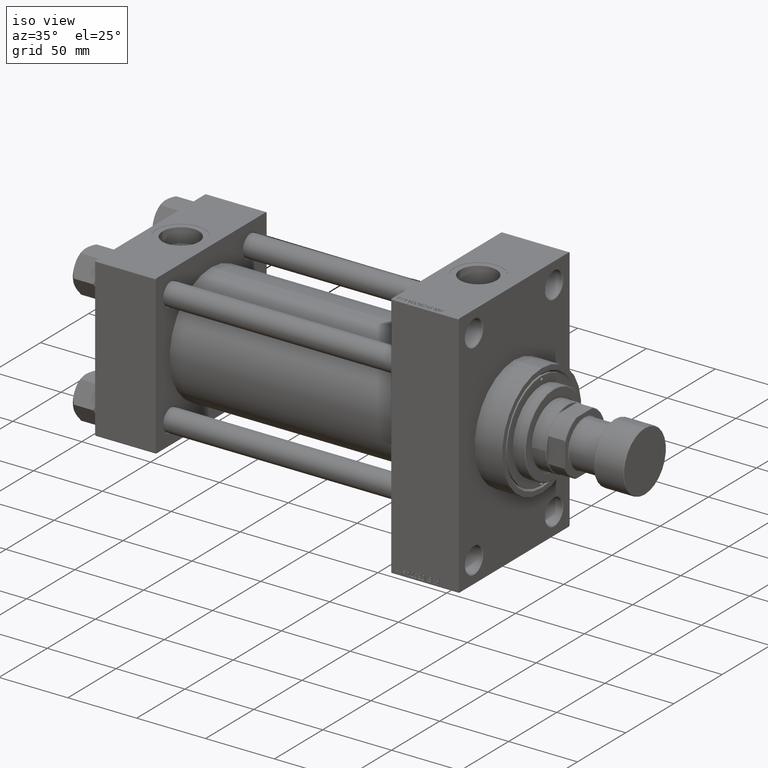
[diagram: clean part render]
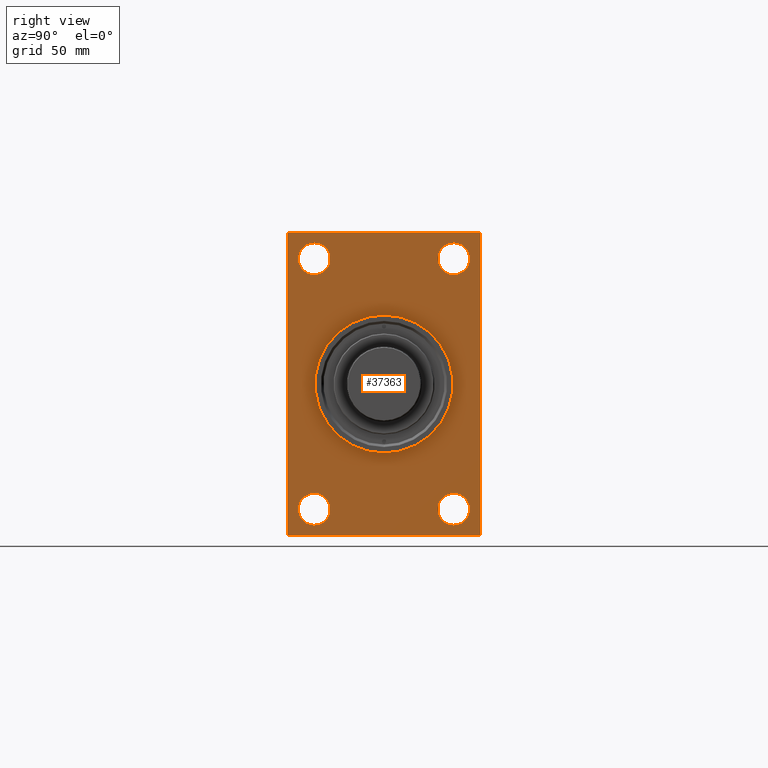
[diagram: tour spotlight — one face highlighted and labeled with its STEP entity id]
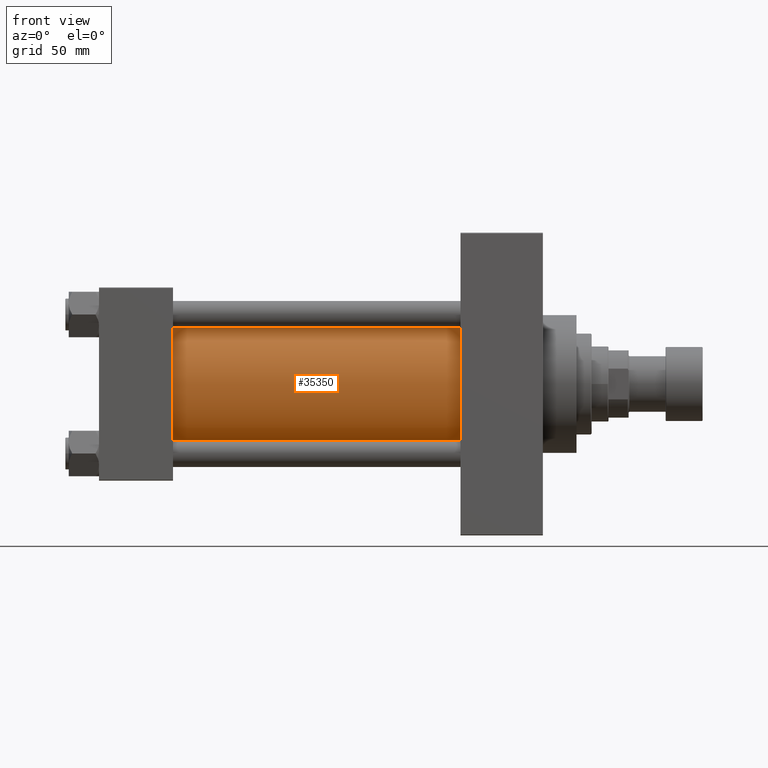
[diagram: tour spotlight — one face highlighted and labeled with its STEP entity id]
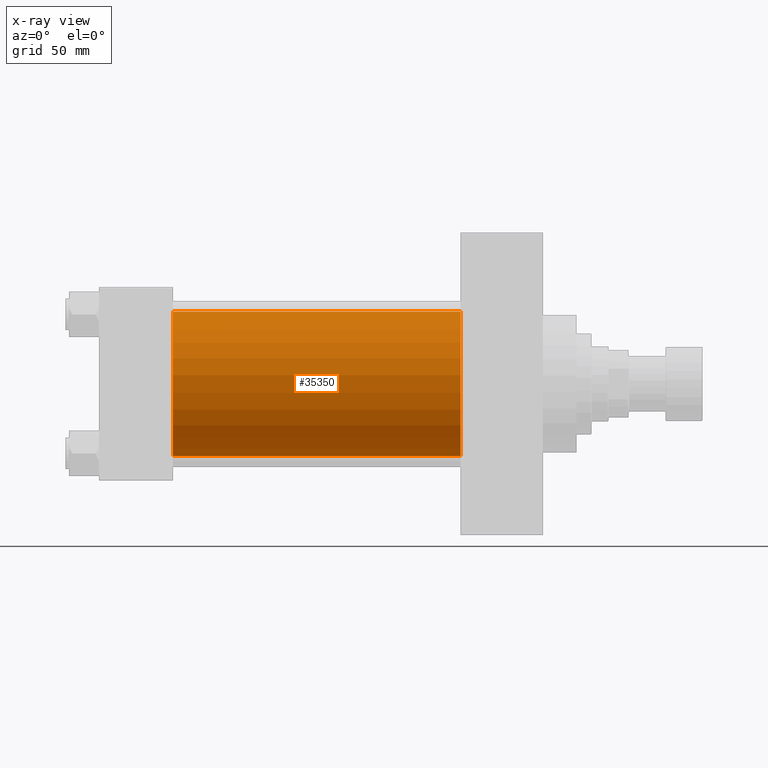
[diagram: x-ray of the same camera — body ghosted, this tour face saturated]
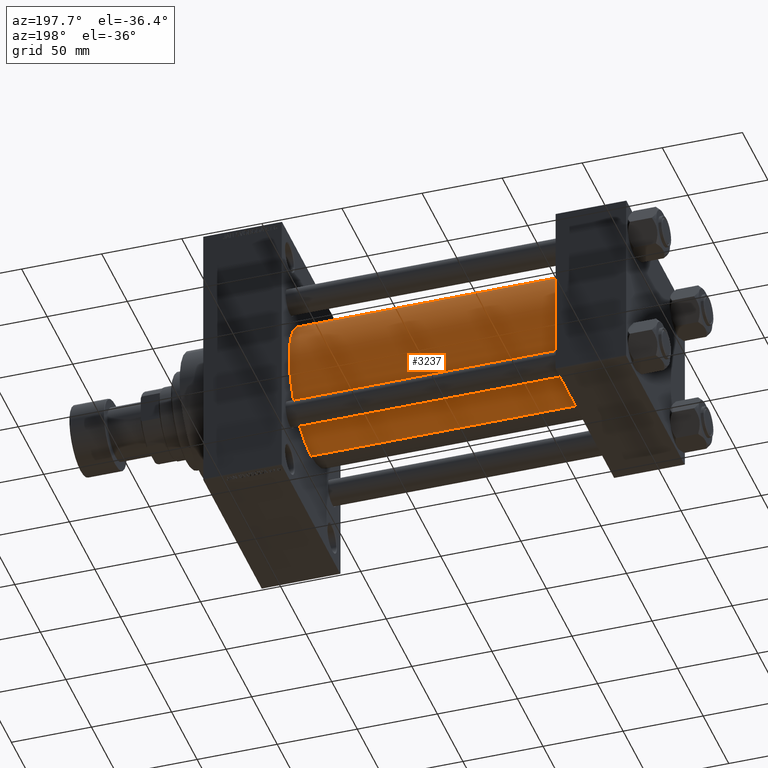
[diagram: tour spotlight — one face highlighted and labeled with its STEP entity id]
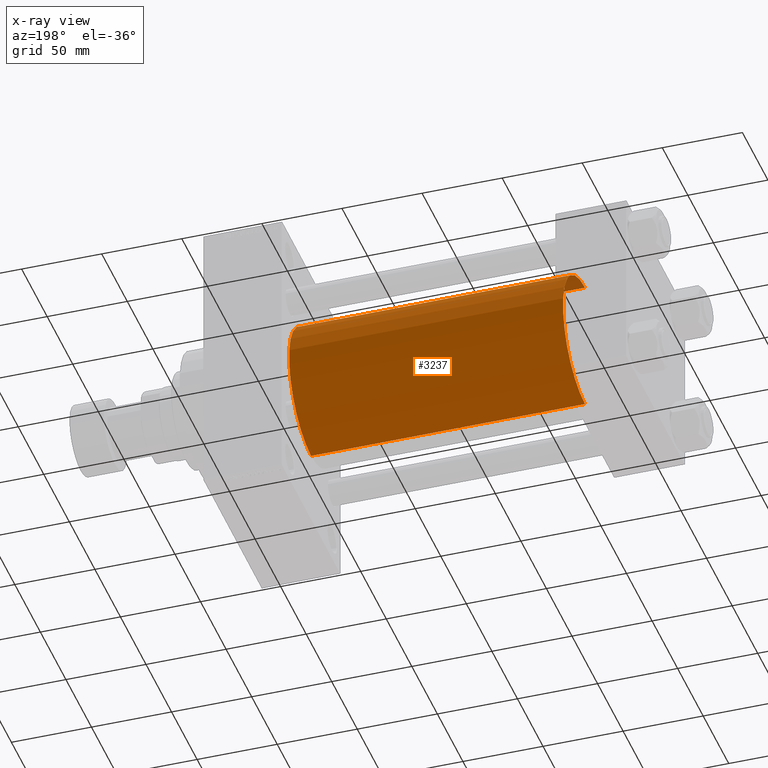
[diagram: x-ray of the same camera — body ghosted, this tour face saturated]
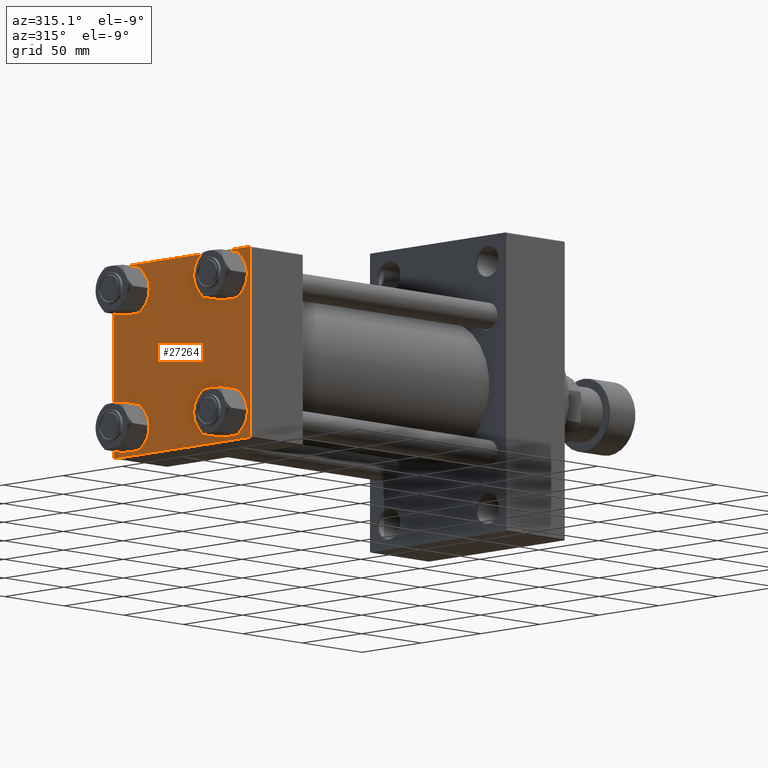
[diagram: tour spotlight — one face highlighted and labeled with its STEP entity id]
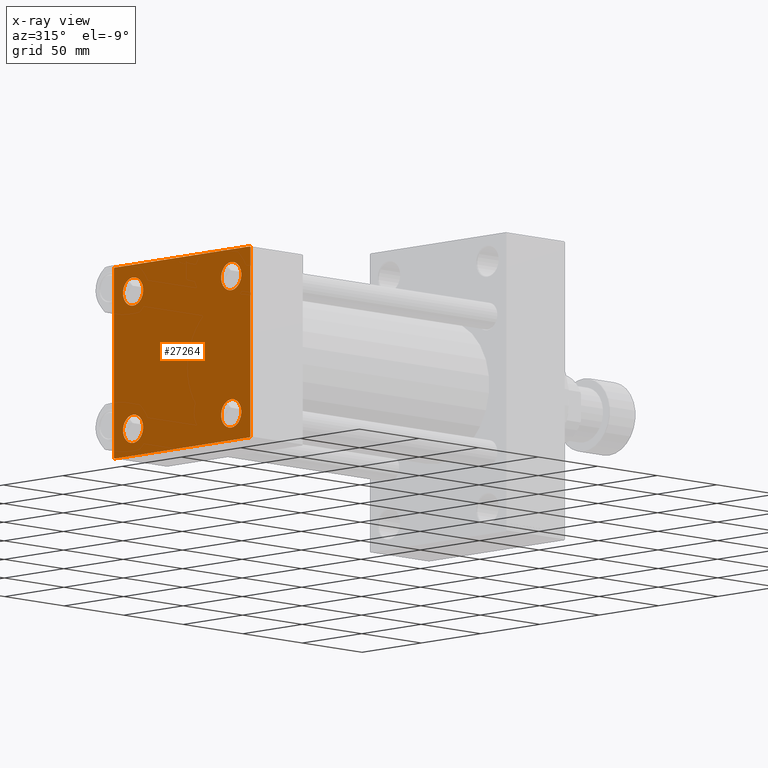
[diagram: x-ray of the same camera — body ghosted, this tour face saturated]
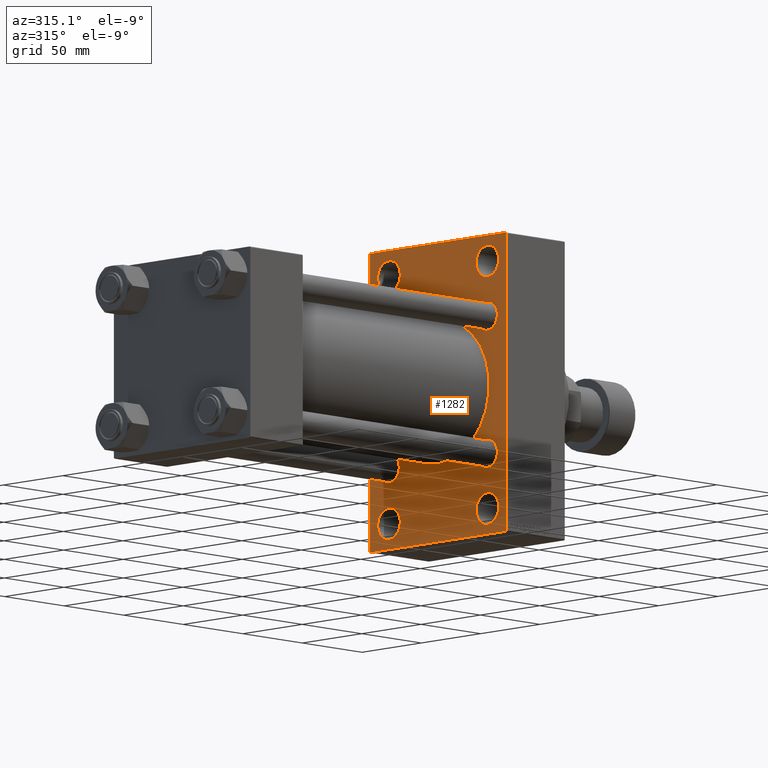
[diagram: tour spotlight — one face highlighted and labeled with its STEP entity id]
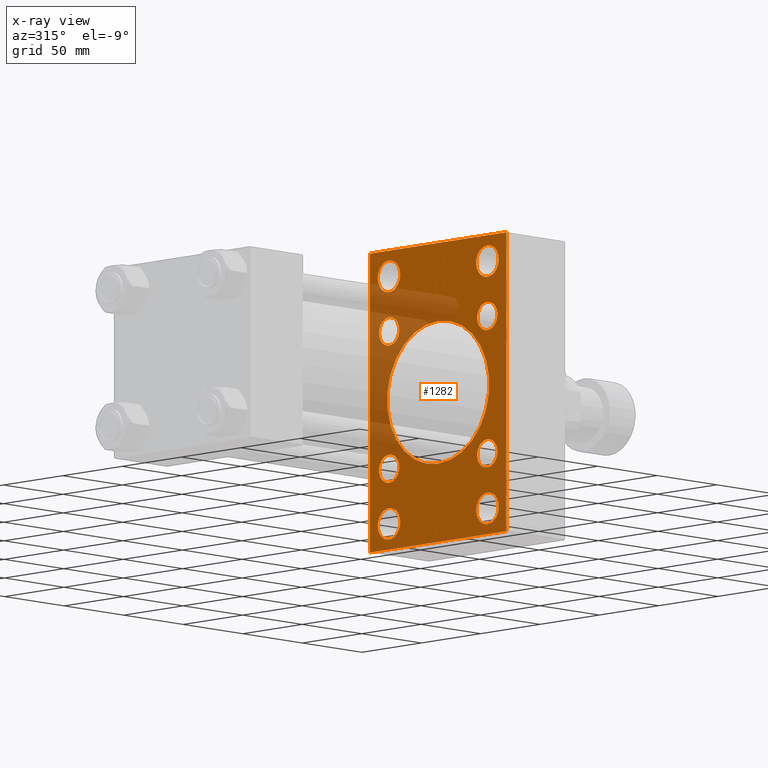
[diagram: x-ray of the same camera — body ghosted, this tour face saturated]
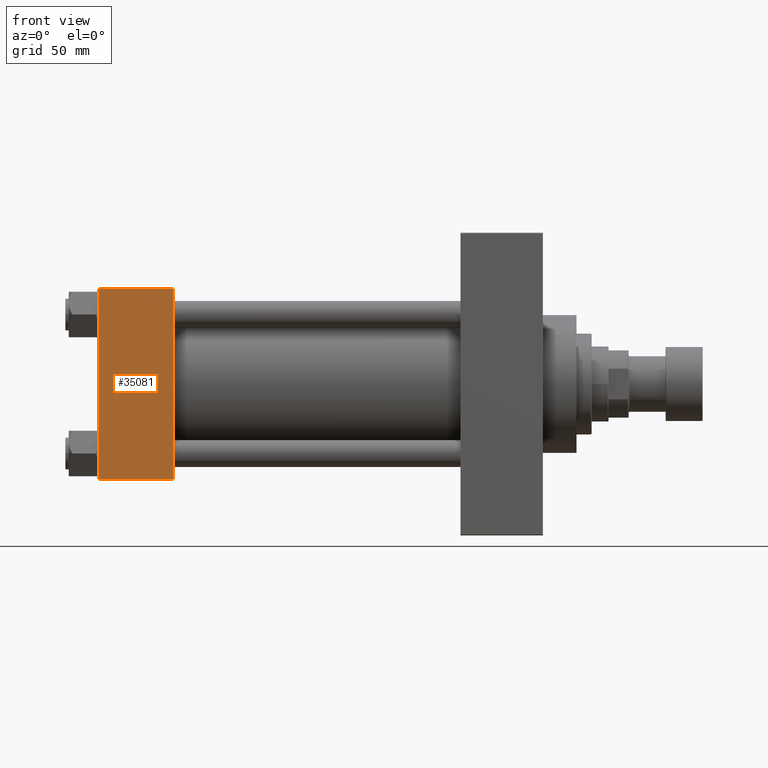
[diagram: tour spotlight — one face highlighted and labeled with its STEP entity id]
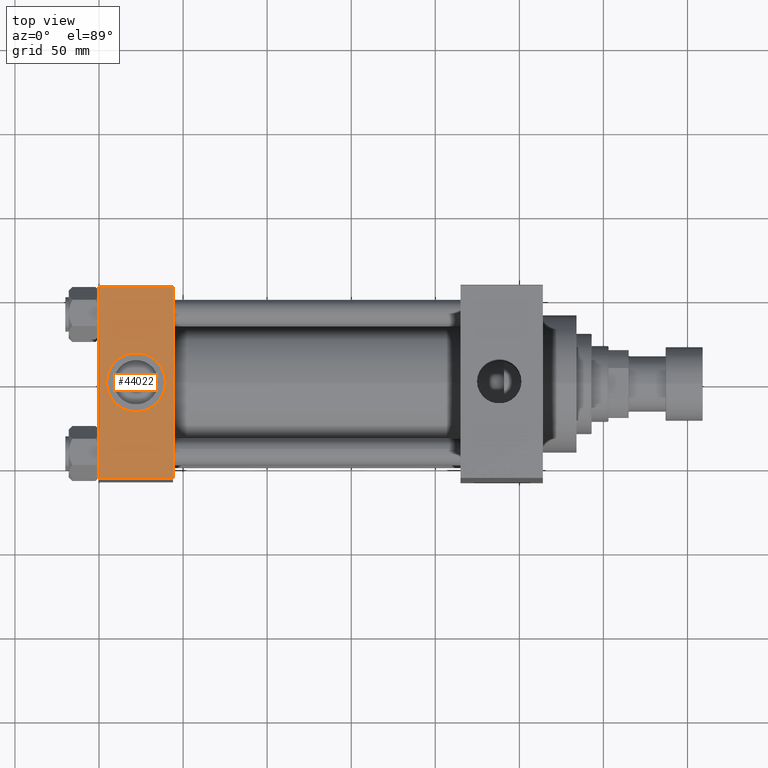
[diagram: tour spotlight — one face highlighted and labeled with its STEP entity id]
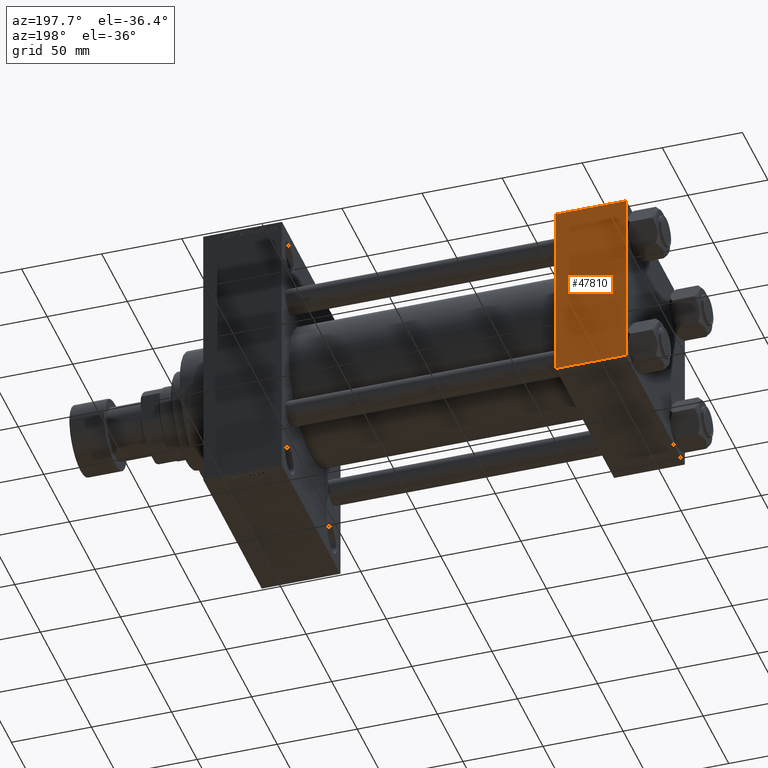
[diagram: tour spotlight — one face highlighted and labeled with its STEP entity id]
A machine part: a face-by-face anatomy tour. The part has 1172 B-rep faces; the first image is the clean iso view, then the 8 largest visible faces are spotlighted one at a time (largest first), each with its STEP entity span.

Face 1 — right view, entity #37363. In plain terms, the highlighted planar face has unit normal (-1, 0, 0).
Definition (entity closure, byte-faithful):
#528 = CARTESIAN_POINT ( 'NONE',  ( 264.0000000000000000, -41.49999999999999289, -74.49999999999998579 ) ) ;
#537 = DIRECTION ( 'NONE',  ( -1.000000000000000000, 0.000000000000000000, -0.000000000000000000 ) ) ;
#1086 = LINE ( 'NONE', #1320, #6115 ) ;
#1166 = LINE ( 'NONE', #4093, #1251 ) ;
#1251 = VECTOR ( 'NONE', #33681, 999.9999999999998863 ) ;
#1320 = CARTESIAN_POINT ( 'NONE',  ( 264.0000000000000000, -57.50000000000002132, 89.99999999999997158 ) ) ;
#1787 = AXIS2_PLACEMENT_3D ( 'NONE', #48112, #40040, #14156 ) ;
#2386 = VECTOR ( 'NONE', #8319, 999.9999999999998863 ) ;
#2414 = EDGE_CURVE ( 'NONE', #3495, #6301, #26510, .T. ) ;
#2760 = DIRECTION ( 'NONE',  ( -1.000000000000000000, 0.000000000000000000, -0.000000000000000000 ) ) ;
#3235 = CIRCLE ( 'NONE', #4748, 9.499999999999953815 ) ;
#3426 = VERTEX_POINT ( 'NONE', #13166 ) ;
#3495 = VERTEX_POINT ( 'NONE', #48330 ) ;
#3806 = CIRCLE ( 'NONE', #8479, 9.499999999999953815 ) ;
#4071 = CARTESIAN_POINT ( 'NONE',  ( 264.0000000000000000, 0.000000000000000000, 0.000000000000000000 ) ) ;
#4093 = CARTESIAN_POINT ( 'NONE',  ( 264.0000000000000000, -57.00000000000007816, -90.00000000000001421 ) ) ;
#4748 = AXIS2_PLACEMENT_3D ( 'NONE', #25057, #14304, #13329 ) ;
#4840 = LINE ( 'NONE', #19734, #14955 ) ;
#4922 = CARTESIAN_POINT ( 'NONE',  ( 264.0000000000000000, 41.50000000000000711, 74.50000000000001421 ) ) ;
#5439 = AXIS2_PLACEMENT_3D ( 'NONE', #20784, #21028, #39106 ) ;
#6101 = ORIENTED_EDGE ( 'NONE', *, *, #39065, .T. ) ;
#6115 = VECTOR ( 'NONE', #46027, 1000.000000000000000 ) ;
#6301 = VERTEX_POINT ( 'NONE', #31645 ) ;
#6413 = FACE_BOUND ( 'NONE', #13309, .T. ) ;
#6429 = DIRECTION ( 'NONE',  ( 0.000000000000000000, 0.000000000000000000, 1.000000000000000000 ) ) ;
#6454 = EDGE_CURVE ( 'NONE', #42118, #33189, #25935, .T. ) ;
#7034 = EDGE_CURVE ( 'NONE', #42118, #41774, #48242, .T. ) ;
#7309 = CARTESIAN_POINT ( 'NONE',  ( 264.0000000000000000, -57.50000000000002132, -89.50000000000002842 ) ) ;
#7558 = CIRCLE ( 'NONE', #36443, 9.499999999999953815 ) ;
#8319 = DIRECTION ( 'NONE',  ( -0.000000000000000000, -0.7071067811865525687, -0.7071067811865425767 ) ) ;
#8479 = AXIS2_PLACEMENT_3D ( 'NONE', #4922, #537, #19813 ) ;
#9264 = VERTEX_POINT ( 'NONE', #23753 ) ;
#9273 = EDGE_LOOP ( 'NONE', ( #35173, #47137 ) ) ;
#9520 = CARTESIAN_POINT ( 'NONE',  ( 264.0000000000000000, 57.49999999999997868, -90.00000000000000000 ) ) ;
#9835 = FACE_BOUND ( 'NONE', #36100, .T. ) ;
#9984 = DIRECTION ( 'NONE',  ( -1.000000000000000000, 0.000000000000000000, -0.000000000000000000 ) ) ;
#10078 = PLANE ( 'NONE',  #37290 ) ;
#10296 = ORIENTED_EDGE ( 'NONE', *, *, #6454, .F. ) ;
#10627 = ORIENTED_EDGE ( 'NONE', *, *, #43645, .T. ) ;
#10823 = EDGE_CURVE ( 'NONE', #41774, #23968, #4840, .T. ) ;
#11752 = VECTOR ( 'NONE', #29451, 1000.000000000000114 ) ;
#13166 = CARTESIAN_POINT ( 'NONE',  ( 264.0000000000000000, 41.50000000000000711, 83.99999999999995737 ) ) ;
#13287 = EDGE_CURVE ( 'NONE', #46529, #9264, #47050, .T. ) ;
#13309 = EDGE_LOOP ( 'NONE', ( #23642, #40786 ) ) ;
#13329 = DIRECTION ( 'NONE',  ( 0.000000000000000000, 0.000000000000000000, 1.000000000000000000 ) ) ;
#13656 = DIRECTION ( 'NONE',  ( 0.000000000000000000, 0.000000000000000000, 1.000000000000000000 ) ) ;
#14156 = DIRECTION ( 'NONE',  ( 0.000000000000000000, 0.000000000000000000, -1.000000000000000000 ) ) ;
#14304 = DIRECTION ( 'NONE',  ( -1.000000000000000000, 0.000000000000000000, -0.000000000000000000 ) ) ;
#14463 = CARTESIAN_POINT ( 'NONE',  ( 264.0000000000000000, -57.50000000000002132, 89.49999999999997158 ) ) ;
#14955 = VECTOR ( 'NONE', #34666, 1000.000000000000000 ) ;
#15178 = CARTESIAN_POINT ( 'NONE',  ( 264.0000000000000000, -41.49999999999999289, 74.50000000000001421 ) ) ;
#15362 = AXIS2_PLACEMENT_3D ( 'NONE', #32241, #9984, #13656 ) ;
#15614 = ORIENTED_EDGE ( 'NONE', *, *, #46946, .T. ) ;
#15795 = DIRECTION ( 'NONE',  ( 1.000000000000000000, 0.000000000000000000, 0.000000000000000000 ) ) ;
#16119 = ORIENTED_EDGE ( 'NONE', *, *, #37702, .T. ) ;
#16240 = CARTESIAN_POINT ( 'NONE',  ( 264.0000000000000000, -57.00000000000001421, 89.99999999999997158 ) ) ;
#16275 = VERTEX_POINT ( 'NONE', #40405 ) ;
#16605 = VERTEX_POINT ( 'NONE', #25218 ) ;
#17091 = EDGE_LOOP ( 'NONE', ( #45255, #28755, #29181, #30091, #10296, #43008, #25151, #10627 ) ) ;
#17398 = DIRECTION ( 'NONE',  ( -0.000000000000000000, 0.000000000000000000, 1.000000000000000000 ) ) ;
#17700 = CARTESIAN_POINT ( 'NONE',  ( 264.0000000000000000, 56.99999999999992184, 89.99999999999998579 ) ) ;
#17882 = DIRECTION ( 'NONE',  ( -1.000000000000000000, 0.000000000000000000, -0.000000000000000000 ) ) ;
#19071 = DIRECTION ( 'NONE',  ( -1.000000000000000000, 0.000000000000000000, -0.000000000000000000 ) ) ;
#19734 = CARTESIAN_POINT ( 'NONE',  ( 264.0000000000000000, 57.49999999999997158, 89.99999999999998579 ) ) ;
#19813 = DIRECTION ( 'NONE',  ( 0.000000000000000000, 0.000000000000000000, 1.000000000000000000 ) ) ;
#20021 = DIRECTION ( 'NONE',  ( 0.000000000000000000, -1.000000000000000000, -1.206764157201257045E-16 ) ) ;
#20784 = CARTESIAN_POINT ( 'NONE',  ( 264.0000000000000000, 41.50000000000000711, -74.50000000000000000 ) ) ;
#21028 = DIRECTION ( 'NONE',  ( -1.000000000000000000, 0.000000000000000000, -0.000000000000000000 ) ) ;
#21208 = AXIS2_PLACEMENT_3D ( 'NONE', #27275, #35333, #38730 ) ;
#21834 = EDGE_CURVE ( 'NONE', #9264, #46529, #30833, .T. ) ;
#22196 = VECTOR ( 'NONE', #35040, 1000.000000000000000 ) ;
#22649 = DIRECTION ( 'NONE',  ( 0.000000000000000000, 0.000000000000000000, -1.000000000000000000 ) ) ;
#23642 = ORIENTED_EDGE ( 'NONE', *, *, #2414, .T. ) ;
#23753 = CARTESIAN_POINT ( 'NONE',  ( 264.0000000000000000, 5.021051876504148963E-15, -41.00000000000000000 ) ) ;
#23968 = VERTEX_POINT ( 'NONE', #16240 ) ;
#24363 = CIRCLE ( 'NONE', #21208, 9.499999999999953815 ) ;
#24468 = CARTESIAN_POINT ( 'NONE',  ( 264.0000000000000000, -57.00000000000007816, -90.00000000000001421 ) ) ;
#24747 = FACE_BOUND ( 'NONE', #35652, .T. ) ;
#25057 = CARTESIAN_POINT ( 'NONE',  ( 264.0000000000000000, -41.49999999999999289, -74.49999999999998579 ) ) ;
#25151 = ORIENTED_EDGE ( 'NONE', *, *, #10823, .T. ) ;
#25218 = CARTESIAN_POINT ( 'NONE',  ( 264.0000000000000000, 56.99999999999997868, -90.00000000000000000 ) ) ;
#25305 = DIRECTION ( 'NONE',  ( 0.000000000000000000, 0.000000000000000000, 1.000000000000000000 ) ) ;
#25515 = EDGE_LOOP ( 'NONE', ( #15614, #6101 ) ) ;
#25675 = VERTEX_POINT ( 'NONE', #30413 ) ;
#25910 = EDGE_CURVE ( 'NONE', #6301, #3495, #7558, .T. ) ;
#25935 = LINE ( 'NONE', #41527, #43685 ) ;
#26510 = CIRCLE ( 'NONE', #5439, 9.499999999999953815 ) ;
#27275 = CARTESIAN_POINT ( 'NONE',  ( 264.0000000000000000, 41.50000000000000711, 74.50000000000001421 ) ) ;
#27322 = CARTESIAN_POINT ( 'NONE',  ( 264.0000000000000000, -41.49999999999999289, -83.99999999999992895 ) ) ;
#27651 = EDGE_CURVE ( 'NONE', #16605, #33189, #27951, .T. ) ;
#27864 = CIRCLE ( 'NONE', #15362, 9.499999999999953815 ) ;
#27951 = LINE ( 'NONE', #38682, #22196 ) ;
#28656 = FACE_OUTER_BOUND ( 'NONE', #17091, .T. ) ;
#28733 = CIRCLE ( 'NONE', #42063, 9.499999999999953815 ) ;
#28755 = ORIENTED_EDGE ( 'NONE', *, *, #29040, .T. ) ;
#29040 = EDGE_CURVE ( 'NONE', #44057, #46056, #1166, .T. ) ;
#29047 = CIRCLE ( 'NONE', #35284, 9.499999999999953815 ) ;
#29181 = ORIENTED_EDGE ( 'NONE', *, *, #35279, .F. ) ;
#29377 = LINE ( 'NONE', #44247, #2386 ) ;
#29451 = DIRECTION ( 'NONE',  ( 0.000000000000000000, -0.7071067811865474617, 0.7071067811865474617 ) ) ;
#30091 = ORIENTED_EDGE ( 'NONE', *, *, #27651, .T. ) ;
#30413 = CARTESIAN_POINT ( 'NONE',  ( 264.0000000000000000, -41.49999999999999289, 65.00000000000005684 ) ) ;
#30833 = CIRCLE ( 'NONE', #42485, 41.00000000000000000 ) ;
#31523 = EDGE_CURVE ( 'NONE', #45928, #25675, #27864, .T. ) ;
#31645 = CARTESIAN_POINT ( 'NONE',  ( 264.0000000000000000, 41.50000000000000711, -65.00000000000004263 ) ) ;
#31844 = FACE_BOUND ( 'NONE', #9273, .T. ) ;
#32241 = CARTESIAN_POINT ( 'NONE',  ( 264.0000000000000000, -41.49999999999999289, 74.50000000000001421 ) ) ;
#33189 = VERTEX_POINT ( 'NONE', #34707 ) ;
#33303 = CARTESIAN_POINT ( 'NONE',  ( 264.0000000000000000, 41.50000000000000711, -74.50000000000000000 ) ) ;
#33507 = DIRECTION ( 'NONE',  ( 0.000000000000000000, 3.854941057726238467E-17, -1.000000000000000000 ) ) ;
#33681 = DIRECTION ( 'NONE',  ( 0.000000000000000000, 0.7071067811865574537, -0.7071067811865376918 ) ) ;
#34126 = CARTESIAN_POINT ( 'NONE',  ( 264.0000000000000000, -41.49999999999999289, -65.00000000000002842 ) ) ;
#34666 = DIRECTION ( 'NONE',  ( 0.000000000000000000, -1.000000000000000000, -1.206764157201257291E-16 ) ) ;
#34707 = CARTESIAN_POINT ( 'NONE',  ( 264.0000000000000000, 57.49999999999997868, -89.49999999999995737 ) ) ;
#35040 = DIRECTION ( 'NONE',  ( -0.000000000000000000, 0.7071067811865573427, 0.7071067811865378028 ) ) ;
#35173 = ORIENTED_EDGE ( 'NONE', *, *, #47123, .T. ) ;
#35279 = EDGE_CURVE ( 'NONE', #16605, #46056, #38832, .T. ) ;
#35284 = AXIS2_PLACEMENT_3D ( 'NONE', #15178, #43358, #41310 ) ;
#35333 = DIRECTION ( 'NONE',  ( -1.000000000000000000, 0.000000000000000000, -0.000000000000000000 ) ) ;
#35593 = ORIENTED_EDGE ( 'NONE', *, *, #21834, .F. ) ;
#35652 = EDGE_LOOP ( 'NONE', ( #45559, #35593 ) ) ;
#36100 = EDGE_LOOP ( 'NONE', ( #16119, #42273 ) ) ;
#36443 = AXIS2_PLACEMENT_3D ( 'NONE', #33303, #2760, #6429 ) ;
#37290 = AXIS2_PLACEMENT_3D ( 'NONE', #46974, #17882, #17398 ) ;
#37363 = ADVANCED_FACE ( 'NONE', ( #31844, #9835, #6413, #46731, #24747, #28656 ), #10078, .F. ) ;
#37702 = EDGE_CURVE ( 'NONE', #44225, #40415, #28733, .T. ) ;
#38378 = CARTESIAN_POINT ( 'NONE',  ( 264.0000000000000000, -41.49999999999999289, 83.99999999999995737 ) ) ;
#38682 = CARTESIAN_POINT ( 'NONE',  ( 264.0000000000000000, 57.49999999999997868, -89.50000000000001421 ) ) ;
#38730 = DIRECTION ( 'NONE',  ( 0.000000000000000000, 0.000000000000000000, 1.000000000000000000 ) ) ;
#38800 = EDGE_CURVE ( 'NONE', #41751, #44057, #1086, .T. ) ;
#38832 = LINE ( 'NONE', #9520, #41188 ) ;
#39065 = EDGE_CURVE ( 'NONE', #3426, #16275, #3806, .T. ) ;
#39106 = DIRECTION ( 'NONE',  ( 0.000000000000000000, 0.000000000000000000, 1.000000000000000000 ) ) ;
#40040 = DIRECTION ( 'NONE',  ( 1.000000000000000000, 0.000000000000000000, 0.000000000000000000 ) ) ;
#40405 = CARTESIAN_POINT ( 'NONE',  ( 264.0000000000000000, 41.50000000000000711, 65.00000000000005684 ) ) ;
#40415 = VERTEX_POINT ( 'NONE', #34126 ) ;
#40786 = ORIENTED_EDGE ( 'NONE', *, *, #25910, .T. ) ;
#41188 = VECTOR ( 'NONE', #20021, 1000.000000000000000 ) ;
#41310 = DIRECTION ( 'NONE',  ( 0.000000000000000000, 0.000000000000000000, 1.000000000000000000 ) ) ;
#41477 = CARTESIAN_POINT ( 'NONE',  ( 264.0000000000000000, 57.49999999999997158, 89.49999999999992895 ) ) ;
#41527 = CARTESIAN_POINT ( 'NONE',  ( 264.0000000000000000, 57.49999999999997158, 89.99999999999998579 ) ) ;
#41751 = VERTEX_POINT ( 'NONE', #14463 ) ;
#41774 = VERTEX_POINT ( 'NONE', #42021 ) ;
#42021 = CARTESIAN_POINT ( 'NONE',  ( 264.0000000000000000, 56.99999999999992184, 89.99999999999998579 ) ) ;
#42063 = AXIS2_PLACEMENT_3D ( 'NONE', #528, #19071, #25305 ) ;
#42118 = VERTEX_POINT ( 'NONE', #41477 ) ;
#42273 = ORIENTED_EDGE ( 'NONE', *, *, #45360, .T. ) ;
#42485 = AXIS2_PLACEMENT_3D ( 'NONE', #4071, #15795, #22649 ) ;
#43008 = ORIENTED_EDGE ( 'NONE', *, *, #7034, .T. ) ;
#43358 = DIRECTION ( 'NONE',  ( -1.000000000000000000, 0.000000000000000000, -0.000000000000000000 ) ) ;
#43645 = EDGE_CURVE ( 'NONE', #23968, #41751, #29377, .T. ) ;
#43685 = VECTOR ( 'NONE', #33507, 1000.000000000000000 ) ;
#44057 = VERTEX_POINT ( 'NONE', #7309 ) ;
#44225 = VERTEX_POINT ( 'NONE', #27322 ) ;
#44247 = CARTESIAN_POINT ( 'NONE',  ( 264.0000000000000000, -57.50000000000002132, 89.49999999999997158 ) ) ;
#45255 = ORIENTED_EDGE ( 'NONE', *, *, #38800, .T. ) ;
#45360 = EDGE_CURVE ( 'NONE', #40415, #44225, #3235, .T. ) ;
#45559 = ORIENTED_EDGE ( 'NONE', *, *, #13287, .F. ) ;
#45928 = VERTEX_POINT ( 'NONE', #38378 ) ;
#46027 = DIRECTION ( 'NONE',  ( 0.000000000000000000, 0.000000000000000000, -1.000000000000000000 ) ) ;
#46056 = VERTEX_POINT ( 'NONE', #24468 ) ;
#46529 = VERTEX_POINT ( 'NONE', #47096 ) ;
#46731 = FACE_BOUND ( 'NONE', #25515, .T. ) ;
#46946 = EDGE_CURVE ( 'NONE', #16275, #3426, #24363, .T. ) ;
#46974 = CARTESIAN_POINT ( 'NONE',  ( 264.0000000000000000, 0.000000000000000000, 0.000000000000000000 ) ) ;
#47050 = CIRCLE ( 'NONE', #1787, 41.00000000000000000 ) ;
#47096 = CARTESIAN_POINT ( 'NONE',  ( 264.0000000000000000, 0.000000000000000000, 41.00000000000000000 ) ) ;
#47123 = EDGE_CURVE ( 'NONE', #25675, #45928, #29047, .T. ) ;
#47137 = ORIENTED_EDGE ( 'NONE', *, *, #31523, .T. ) ;
#48112 = CARTESIAN_POINT ( 'NONE',  ( 264.0000000000000000, 0.000000000000000000, 0.000000000000000000 ) ) ;
#48242 = LINE ( 'NONE', #17700, #11752 ) ;
#48330 = CARTESIAN_POINT ( 'NONE',  ( 264.0000000000000000, 41.50000000000000711, -83.99999999999994316 ) ) ;

Face 2 — front view, entity #35350. An x-ray twin of the same camera follows (body ghosted, this face saturated) — the face is partly hidden behind the body. In plain terms, the highlighted cylindrical surface (partial cylindrical patch) has radius 43 mm, axis along (-1, -0, -0).
Definition (entity closure, byte-faithful):
#816 = VERTEX_POINT ( 'NONE', #23237 ) ;
#3166 = DIRECTION ( 'NONE',  ( 0.000000000000000000, 0.000000000000000000, 1.000000000000000000 ) ) ;
#4212 = ORIENTED_EDGE ( 'NONE', *, *, #7340, .T. ) ;
#4527 = CARTESIAN_POINT ( 'NONE',  ( 43.99999999999998579, 2.663896022368408223E-15, -43.00000000000000000 ) ) ;
#5898 = EDGE_LOOP ( 'NONE', ( #33081, #11002, #4212, #35214 ) ) ;
#7340 = EDGE_CURVE ( 'NONE', #9968, #23902, #13742, .T. ) ;
#8799 = CYLINDRICAL_SURFACE ( 'NONE', #48258, 43.00000000000000000 ) ;
#9276 = FACE_OUTER_BOUND ( 'NONE', #5898, .T. ) ;
#9968 = VERTEX_POINT ( 'NONE', #32978 ) ;
#10970 = AXIS2_PLACEMENT_3D ( 'NONE', #47386, #21734, #3166 ) ;
#11002 = ORIENTED_EDGE ( 'NONE', *, *, #11258, .F. ) ;
#11102 = CARTESIAN_POINT ( 'NONE',  ( 215.0000000000000284, 2.663896022368408223E-15, -43.00000000000000000 ) ) ;
#11258 = EDGE_CURVE ( 'NONE', #9968, #816, #25154, .T. ) ;
#13742 = LINE ( 'NONE', #47709, #42950 ) ;
#16604 = CARTESIAN_POINT ( 'NONE',  ( 215.0000000000000284, -2.602085213965210642E-15, 0.000000000000000000 ) ) ;
#21734 = DIRECTION ( 'NONE',  ( 1.000000000000000000, -0.000000000000000000, 0.000000000000000000 ) ) ;
#23237 = CARTESIAN_POINT ( 'NONE',  ( 215.0000000000000284, 2.663896022368408223E-15, -43.00000000000000000 ) ) ;
#23902 = VERTEX_POINT ( 'NONE', #42145 ) ;
#25154 = CIRCLE ( 'NONE', #36098, 43.00000000000000000 ) ;
#26729 = LINE ( 'NONE', #11102, #29613 ) ;
#27749 = DIRECTION ( 'NONE',  ( 1.000000000000000000, 0.000000000000000000, 0.000000000000000000 ) ) ;
#29613 = VECTOR ( 'NONE', #41367, 1000.000000000000000 ) ;
#32329 = DIRECTION ( 'NONE',  ( -1.000000000000000000, -0.000000000000000000, -0.000000000000000000 ) ) ;
#32978 = CARTESIAN_POINT ( 'NONE',  ( 215.0000000000000284, -2.602085213965210642E-15, 43.00000000000000000 ) ) ;
#33081 = ORIENTED_EDGE ( 'NONE', *, *, #37210, .F. ) ;
#33602 = CIRCLE ( 'NONE', #10970, 43.00000000000000000 ) ;
#35214 = ORIENTED_EDGE ( 'NONE', *, *, #43867, .T. ) ;
#35350 = ADVANCED_FACE ( 'NONE', ( #9276 ), #8799, .T. ) ;
#35862 = VERTEX_POINT ( 'NONE', #4527 ) ;
#36098 = AXIS2_PLACEMENT_3D ( 'NONE', #43350, #27749, #42626 ) ;
#37210 = EDGE_CURVE ( 'NONE', #816, #35862, #26729, .T. ) ;
#41367 = DIRECTION ( 'NONE',  ( -1.000000000000000000, -0.000000000000000000, -0.000000000000000000 ) ) ;
#42145 = CARTESIAN_POINT ( 'NONE',  ( 43.99999999999998579, -2.602085213965210642E-15, 43.00000000000000000 ) ) ;
#42626 = DIRECTION ( 'NONE',  ( 0.000000000000000000, 0.000000000000000000, -1.000000000000000000 ) ) ;
#42950 = VECTOR ( 'NONE', #32329, 1000.000000000000000 ) ;
#43350 = CARTESIAN_POINT ( 'NONE',  ( 215.0000000000000284, -2.602085213965210642E-15, 0.000000000000000000 ) ) ;
#43867 = EDGE_CURVE ( 'NONE', #23902, #35862, #33602, .T. ) ;
#46182 = DIRECTION ( 'NONE',  ( -1.000000000000000000, -0.000000000000000000, -0.000000000000000000 ) ) ;
#46421 = DIRECTION ( 'NONE',  ( 0.000000000000000000, 0.000000000000000000, 1.000000000000000000 ) ) ;
#47386 = CARTESIAN_POINT ( 'NONE',  ( 43.99999999999998579, -2.602085213965210642E-15, 0.000000000000000000 ) ) ;
#47709 = CARTESIAN_POINT ( 'NONE',  ( 215.0000000000000284, -2.602085213965210642E-15, 43.00000000000000000 ) ) ;
#48258 = AXIS2_PLACEMENT_3D ( 'NONE', #16604, #46182, #46421 ) ;

Face 3 — auxiliary view, entity #3237. An x-ray twin of the same camera follows (body ghosted, this face saturated) — the face is partly hidden behind the body. In plain terms, the highlighted cylindrical surface (partial cylindrical patch) has radius 43 mm, axis along (-1, -0, -0).
Definition (entity closure, byte-faithful):
#816 = VERTEX_POINT ( 'NONE', #23237 ) ;
#3237 = ADVANCED_FACE ( 'NONE', ( #26389 ), #26635, .T. ) ;
#3738 = ORIENTED_EDGE ( 'NONE', *, *, #22879, .T. ) ;
#4527 = CARTESIAN_POINT ( 'NONE',  ( 43.99999999999998579, 2.663896022368408223E-15, -43.00000000000000000 ) ) ;
#7340 = EDGE_CURVE ( 'NONE', #9968, #23902, #13742, .T. ) ;
#9968 = VERTEX_POINT ( 'NONE', #32978 ) ;
#11102 = CARTESIAN_POINT ( 'NONE',  ( 215.0000000000000284, 2.663896022368408223E-15, -43.00000000000000000 ) ) ;
#13742 = LINE ( 'NONE', #47709, #42950 ) ;
#14306 = DIRECTION ( 'NONE',  ( 1.000000000000000000, 0.000000000000000000, 0.000000000000000000 ) ) ;
#18325 = DIRECTION ( 'NONE',  ( -1.000000000000000000, -0.000000000000000000, -0.000000000000000000 ) ) ;
#18327 = CIRCLE ( 'NONE', #31606, 43.00000000000000000 ) ;
#21087 = EDGE_CURVE ( 'NONE', #816, #9968, #18327, .T. ) ;
#22023 = CARTESIAN_POINT ( 'NONE',  ( 215.0000000000000284, -2.602085213965210642E-15, 0.000000000000000000 ) ) ;
#22879 = EDGE_CURVE ( 'NONE', #35862, #23902, #48029, .T. ) ;
#22974 = DIRECTION ( 'NONE',  ( 0.000000000000000000, 0.000000000000000000, 1.000000000000000000 ) ) ;
#23237 = CARTESIAN_POINT ( 'NONE',  ( 215.0000000000000284, 2.663896022368408223E-15, -43.00000000000000000 ) ) ;
#23902 = VERTEX_POINT ( 'NONE', #42145 ) ;
#24813 = DIRECTION ( 'NONE',  ( 0.000000000000000000, 0.000000000000000000, -1.000000000000000000 ) ) ;
#25543 = CARTESIAN_POINT ( 'NONE',  ( 215.0000000000000284, -2.602085213965210642E-15, 0.000000000000000000 ) ) ;
#26389 = FACE_OUTER_BOUND ( 'NONE', #37251, .T. ) ;
#26635 = CYLINDRICAL_SURFACE ( 'NONE', #48271, 43.00000000000000000 ) ;
#26729 = LINE ( 'NONE', #11102, #29613 ) ;
#26955 = AXIS2_PLACEMENT_3D ( 'NONE', #39041, #35407, #38327 ) ;
#29527 = ORIENTED_EDGE ( 'NONE', *, *, #7340, .F. ) ;
#29613 = VECTOR ( 'NONE', #41367, 1000.000000000000000 ) ;
#31424 = ORIENTED_EDGE ( 'NONE', *, *, #37210, .T. ) ;
#31606 = AXIS2_PLACEMENT_3D ( 'NONE', #25543, #14306, #24813 ) ;
#32329 = DIRECTION ( 'NONE',  ( -1.000000000000000000, -0.000000000000000000, -0.000000000000000000 ) ) ;
#32978 = CARTESIAN_POINT ( 'NONE',  ( 215.0000000000000284, -2.602085213965210642E-15, 43.00000000000000000 ) ) ;
#35407 = DIRECTION ( 'NONE',  ( 1.000000000000000000, -0.000000000000000000, 0.000000000000000000 ) ) ;
#35862 = VERTEX_POINT ( 'NONE', #4527 ) ;
#37210 = EDGE_CURVE ( 'NONE', #816, #35862, #26729, .T. ) ;
#37251 = EDGE_LOOP ( 'NONE', ( #38456, #31424, #3738, #29527 ) ) ;
#38327 = DIRECTION ( 'NONE',  ( 0.000000000000000000, 0.000000000000000000, 1.000000000000000000 ) ) ;
#38456 = ORIENTED_EDGE ( 'NONE', *, *, #21087, .F. ) ;
#39041 = CARTESIAN_POINT ( 'NONE',  ( 43.99999999999998579, -2.602085213965210642E-15, 0.000000000000000000 ) ) ;
#41367 = DIRECTION ( 'NONE',  ( -1.000000000000000000, -0.000000000000000000, -0.000000000000000000 ) ) ;
#42145 = CARTESIAN_POINT ( 'NONE',  ( 43.99999999999998579, -2.602085213965210642E-15, 43.00000000000000000 ) ) ;
#42950 = VECTOR ( 'NONE', #32329, 1000.000000000000000 ) ;
#47709 = CARTESIAN_POINT ( 'NONE',  ( 215.0000000000000284, -2.602085213965210642E-15, 43.00000000000000000 ) ) ;
#48029 = CIRCLE ( 'NONE', #26955, 43.00000000000000000 ) ;
#48271 = AXIS2_PLACEMENT_3D ( 'NONE', #22023, #18325, #22974 ) ;

Face 4 — auxiliary view, entity #27264. An x-ray twin of the same camera follows (body ghosted, this face saturated) — the face is partly hidden behind the body. In plain terms, the highlighted planar face has unit normal (-1, 0, 0).
Definition (entity closure, byte-faithful):
#423 = EDGE_CURVE ( 'NONE', #30669, #2832, #5431, .T. ) ;
#496 = CARTESIAN_POINT ( 'NONE',  ( 0.000000000000000000, -57.50000000000000711, 57.49999999999999289 ) ) ;
#981 = EDGE_CURVE ( 'NONE', #18501, #26710, #5855, .T. ) ;
#1278 = EDGE_LOOP ( 'NONE', ( #8691, #7830 ) ) ;
#1349 = AXIS2_PLACEMENT_3D ( 'NONE', #28216, #12573, #9385 ) ;
#1546 = VERTEX_POINT ( 'NONE', #27821 ) ;
#1617 = CARTESIAN_POINT ( 'NONE',  ( 0.000000000000000000, -41.34999999999998721, -32.85000000000001563 ) ) ;
#1686 = FACE_BOUND ( 'NONE', #43422, .T. ) ;
#1723 = DIRECTION ( 'NONE',  ( -0.000000000000000000, -0.7071067811865376918, -0.7071067811865573427 ) ) ;
#2832 = VERTEX_POINT ( 'NONE', #41872 ) ;
#3682 = VERTEX_POINT ( 'NONE', #10353 ) ;
#3827 = CARTESIAN_POINT ( 'NONE',  ( 0.000000000000000000, -41.34999999999998721, 41.35000000000000853 ) ) ;
#4153 = DIRECTION ( 'NONE',  ( 0.000000000000000000, 0.000000000000000000, -1.000000000000000000 ) ) ;
#4651 = CARTESIAN_POINT ( 'NONE',  ( 0.000000000000000000, 41.34999999999999432, 41.35000000000000142 ) ) ;
#4777 = VERTEX_POINT ( 'NONE', #35889 ) ;
#4858 = VECTOR ( 'NONE', #43903, 1000.000000000000114 ) ;
#4940 = ORIENTED_EDGE ( 'NONE', *, *, #9171, .T. ) ;
#5023 = DIRECTION ( 'NONE',  ( 1.000000000000000000, -0.000000000000000000, 0.000000000000000000 ) ) ;
#5431 = LINE ( 'NONE', #38417, #11613 ) ;
#5855 = LINE ( 'NONE', #9523, #41279 ) ;
#6385 = CARTESIAN_POINT ( 'NONE',  ( 0.000000000000000000, -41.34999999999998721, 41.35000000000000853 ) ) ;
#6458 = VERTEX_POINT ( 'NONE', #11263 ) ;
#6471 = EDGE_CURVE ( 'NONE', #9043, #6458, #14067, .T. ) ;
#6990 = ORIENTED_EDGE ( 'NONE', *, *, #981, .T. ) ;
#7023 = ORIENTED_EDGE ( 'NONE', *, *, #27068, .T. ) ;
#7761 = DIRECTION ( 'NONE',  ( 0.000000000000000000, -1.000000000000000000, -1.206764157201257045E-16 ) ) ;
#7814 = LINE ( 'NONE', #496, #16155 ) ;
#7830 = ORIENTED_EDGE ( 'NONE', *, *, #37556, .T. ) ;
#8045 = CARTESIAN_POINT ( 'NONE',  ( 0.000000000000000000, 0.000000000000000000, 0.000000000000000000 ) ) ;
#8289 = PLANE ( 'NONE',  #24077 ) ;
#8328 = ORIENTED_EDGE ( 'NONE', *, *, #18479, .T. ) ;
#8691 = ORIENTED_EDGE ( 'NONE', *, *, #33008, .T. ) ;
#9043 = VERTEX_POINT ( 'NONE', #11903 ) ;
#9080 = CIRCLE ( 'NONE', #45743, 8.499999999999992895 ) ;
#9171 = EDGE_CURVE ( 'NONE', #26710, #46608, #33306, .T. ) ;
#9385 = DIRECTION ( 'NONE',  ( 0.000000000000000000, 0.000000000000000000, 1.000000000000000000 ) ) ;
#9523 = CARTESIAN_POINT ( 'NONE',  ( 0.000000000000000000, 57.25000000000081712, -57.24999999999922551 ) ) ;
#10010 = CARTESIAN_POINT ( 'NONE',  ( 0.000000000000000000, -41.34999999999998721, -41.35000000000000853 ) ) ;
#10353 = CARTESIAN_POINT ( 'NONE',  ( 0.000000000000000000, 41.34999999999999432, -32.85000000000000853 ) ) ;
#10968 = DIRECTION ( 'NONE',  ( 0.000000000000000000, 0.000000000000000000, -1.000000000000000000 ) ) ;
#11224 = DIRECTION ( 'NONE',  ( 0.000000000000000000, 0.000000000000000000, 1.000000000000000000 ) ) ;
#11263 = CARTESIAN_POINT ( 'NONE',  ( 0.000000000000000000, 41.34999999999999432, 32.85000000000000853 ) ) ;
#11613 = VECTOR ( 'NONE', #27686, 1000.000000000000114 ) ;
#11715 = DIRECTION ( 'NONE',  ( -1.000000000000000000, 0.000000000000000000, -0.000000000000000000 ) ) ;
#11903 = CARTESIAN_POINT ( 'NONE',  ( 0.000000000000000000, 41.34999999999999432, 49.85000000000000142 ) ) ;
#12322 = CIRCLE ( 'NONE', #48329, 8.499999999999992895 ) ;
#12573 = DIRECTION ( 'NONE',  ( 1.000000000000000000, -0.000000000000000000, 0.000000000000000000 ) ) ;
#13326 = CARTESIAN_POINT ( 'NONE',  ( 0.000000000000000000, 41.34999999999999432, 41.35000000000000142 ) ) ;
#13825 = CIRCLE ( 'NONE', #1349, 8.499999999999992895 ) ;
#13970 = AXIS2_PLACEMENT_3D ( 'NONE', #10010, #15121, #11224 ) ;
#14067 = CIRCLE ( 'NONE', #21064, 8.499999999999992895 ) ;
#14079 = EDGE_LOOP ( 'NONE', ( #27895, #6990, #4940, #7023, #19225, #15697, #18239, #14330 ) ) ;
#14176 = CARTESIAN_POINT ( 'NONE',  ( 0.000000000000000000, 41.34999999999999432, -49.85000000000000142 ) ) ;
#14330 = ORIENTED_EDGE ( 'NONE', *, *, #46637, .T. ) ;
#15121 = DIRECTION ( 'NONE',  ( 1.000000000000000000, -0.000000000000000000, 0.000000000000000000 ) ) ;
#15697 = ORIENTED_EDGE ( 'NONE', *, *, #423, .T. ) ;
#16155 = VECTOR ( 'NONE', #4153, 1000.000000000000000 ) ;
#18239 = ORIENTED_EDGE ( 'NONE', *, *, #33597, .F. ) ;
#18374 = CARTESIAN_POINT ( 'NONE',  ( 0.000000000000000000, 57.49999999999999289, -57.49999999999999289 ) ) ;
#18479 = EDGE_CURVE ( 'NONE', #38398, #20736, #29929, .T. ) ;
#18501 = VERTEX_POINT ( 'NONE', #22268 ) ;
#18712 = VERTEX_POINT ( 'NONE', #28332 ) ;
#19019 = VECTOR ( 'NONE', #10968, 1000.000000000000000 ) ;
#19225 = ORIENTED_EDGE ( 'NONE', *, *, #32371, .F. ) ;
#19266 = DIRECTION ( 'NONE',  ( -0.000000000000000000, 0.000000000000000000, 1.000000000000000000 ) ) ;
#19616 = VECTOR ( 'NONE', #33072, 1000.000000000000000 ) ;
#19778 = EDGE_CURVE ( 'NONE', #22741, #18501, #48111, .T. ) ;
#20230 = FACE_BOUND ( 'NONE', #45200, .T. ) ;
#20462 = CARTESIAN_POINT ( 'NONE',  ( 0.000000000000000000, -41.34999999999998721, 49.85000000000000853 ) ) ;
#20502 = DIRECTION ( 'NONE',  ( 1.000000000000000000, -0.000000000000000000, 0.000000000000000000 ) ) ;
#20640 = DIRECTION ( 'NONE',  ( 1.000000000000000000, -0.000000000000000000, 0.000000000000000000 ) ) ;
#20736 = VERTEX_POINT ( 'NONE', #20462 ) ;
#20919 = VECTOR ( 'NONE', #28139, 1000.000000000000114 ) ;
#21064 = AXIS2_PLACEMENT_3D ( 'NONE', #4651, #22989, #37871 ) ;
#21486 = CARTESIAN_POINT ( 'NONE',  ( 0.000000000000000000, 57.49999999999999289, 57.50000000000000711 ) ) ;
#21524 = LINE ( 'NONE', #29105, #20919 ) ;
#21687 = VECTOR ( 'NONE', #7761, 1000.000000000000000 ) ;
#22151 = AXIS2_PLACEMENT_3D ( 'NONE', #6385, #40821, #44716 ) ;
#22268 = CARTESIAN_POINT ( 'NONE',  ( 0.000000000000000000, 57.49999999999999289, -57.00000000000000711 ) ) ;
#22411 = ORIENTED_EDGE ( 'NONE', *, *, #36534, .T. ) ;
#22477 = CARTESIAN_POINT ( 'NONE',  ( 0.000000000000000000, 57.49999999999999289, 57.00000000000003553 ) ) ;
#22741 = VERTEX_POINT ( 'NONE', #22477 ) ;
#22966 = FACE_OUTER_BOUND ( 'NONE', #14079, .T. ) ;
#22989 = DIRECTION ( 'NONE',  ( 1.000000000000000000, -0.000000000000000000, 0.000000000000000000 ) ) ;
#24076 = CARTESIAN_POINT ( 'NONE',  ( 0.000000000000000000, -41.34999999999998721, -41.35000000000000853 ) ) ;
#24077 = AXIS2_PLACEMENT_3D ( 'NONE', #8045, #11715, #19266 ) ;
#24472 = EDGE_CURVE ( 'NONE', #20736, #38398, #30164, .T. ) ;
#25113 = CARTESIAN_POINT ( 'NONE',  ( 0.000000000000000000, -57.00000000000000711, -57.50000000000000711 ) ) ;
#25143 = ORIENTED_EDGE ( 'NONE', *, *, #36927, .T. ) ;
#25705 = CIRCLE ( 'NONE', #13970, 8.499999999999992895 ) ;
#26236 = ORIENTED_EDGE ( 'NONE', *, *, #30347, .T. ) ;
#26710 = VERTEX_POINT ( 'NONE', #39158 ) ;
#26804 = CARTESIAN_POINT ( 'NONE',  ( 0.000000000000000000, -41.34999999999998721, 32.85000000000001563 ) ) ;
#27068 = EDGE_CURVE ( 'NONE', #46608, #1546, #21524, .T. ) ;
#27264 = ADVANCED_FACE ( 'NONE', ( #20230, #31258, #34448, #1686, #22966 ), #8289, .T. ) ;
#27608 = ORIENTED_EDGE ( 'NONE', *, *, #6471, .T. ) ;
#27686 = DIRECTION ( 'NONE',  ( -0.000000000000000000, 0.7071067811865376918, 0.7071067811865573427 ) ) ;
#27788 = AXIS2_PLACEMENT_3D ( 'NONE', #3827, #39993, #29746 ) ;
#27821 = CARTESIAN_POINT ( 'NONE',  ( 0.000000000000000000, -57.50000000000000711, -57.00000000000000711 ) ) ;
#27895 = ORIENTED_EDGE ( 'NONE', *, *, #19778, .T. ) ;
#28139 = DIRECTION ( 'NONE',  ( 0.000000000000000000, -0.7071067811865474617, 0.7071067811865474617 ) ) ;
#28216 = CARTESIAN_POINT ( 'NONE',  ( 0.000000000000000000, 41.34999999999999432, -41.35000000000000142 ) ) ;
#28332 = CARTESIAN_POINT ( 'NONE',  ( 0.000000000000000000, -41.34999999999998721, -49.85000000000000853 ) ) ;
#29105 = CARTESIAN_POINT ( 'NONE',  ( 0.000000000000000000, -57.25000000000000711, -57.25000000000000711 ) ) ;
#29746 = DIRECTION ( 'NONE',  ( 0.000000000000000000, 0.000000000000000000, 1.000000000000000000 ) ) ;
#29929 = CIRCLE ( 'NONE', #22151, 8.499999999999992895 ) ;
#30164 = CIRCLE ( 'NONE', #27788, 8.499999999999992895 ) ;
#30347 = EDGE_CURVE ( 'NONE', #46912, #18712, #9080, .T. ) ;
#30669 = VERTEX_POINT ( 'NONE', #36710 ) ;
#31258 = FACE_BOUND ( 'NONE', #42202, .T. ) ;
#32371 = EDGE_CURVE ( 'NONE', #30669, #1546, #7814, .T. ) ;
#33008 = EDGE_CURVE ( 'NONE', #3682, #44878, #13825, .T. ) ;
#33072 = DIRECTION ( 'NONE',  ( 0.000000000000000000, -1.000000000000000000, -1.206764157201257045E-16 ) ) ;
#33306 = LINE ( 'NONE', #18374, #19616 ) ;
#33484 = CIRCLE ( 'NONE', #38923, 8.499999999999992895 ) ;
#33597 = EDGE_CURVE ( 'NONE', #4777, #2832, #37810, .T. ) ;
#34448 = FACE_BOUND ( 'NONE', #1278, .T. ) ;
#35889 = CARTESIAN_POINT ( 'NONE',  ( 0.000000000000000000, 57.00000000000000711, 57.50000000000000711 ) ) ;
#36534 = EDGE_CURVE ( 'NONE', #18712, #46912, #25705, .T. ) ;
#36710 = CARTESIAN_POINT ( 'NONE',  ( 0.000000000000000000, -57.50000000000000711, 57.00000000000000711 ) ) ;
#36927 = EDGE_CURVE ( 'NONE', #6458, #9043, #33484, .T. ) ;
#37064 = LINE ( 'NONE', #39991, #4858 ) ;
#37556 = EDGE_CURVE ( 'NONE', #44878, #3682, #12322, .T. ) ;
#37810 = LINE ( 'NONE', #42184, #21687 ) ;
#37871 = DIRECTION ( 'NONE',  ( 0.000000000000000000, 0.000000000000000000, 1.000000000000000000 ) ) ;
#38398 = VERTEX_POINT ( 'NONE', #26804 ) ;
#38417 = CARTESIAN_POINT ( 'NONE',  ( -0.000000000000000000, -57.25000000000081712, 57.24999999999922551 ) ) ;
#38923 = AXIS2_PLACEMENT_3D ( 'NONE', #13326, #5023, #42150 ) ;
#38958 = DIRECTION ( 'NONE',  ( 0.000000000000000000, 0.000000000000000000, 1.000000000000000000 ) ) ;
#39158 = CARTESIAN_POINT ( 'NONE',  ( 0.000000000000000000, 57.00000000000002132, -57.49999999999999289 ) ) ;
#39991 = CARTESIAN_POINT ( 'NONE',  ( 0.000000000000000000, 57.24999999999922551, 57.25000000000081712 ) ) ;
#39993 = DIRECTION ( 'NONE',  ( 1.000000000000000000, -0.000000000000000000, 0.000000000000000000 ) ) ;
#40821 = DIRECTION ( 'NONE',  ( 1.000000000000000000, -0.000000000000000000, 0.000000000000000000 ) ) ;
#41279 = VECTOR ( 'NONE', #1723, 1000.000000000000114 ) ;
#41872 = CARTESIAN_POINT ( 'NONE',  ( 0.000000000000000000, -57.00000000000003553, 57.49999999999999289 ) ) ;
#42150 = DIRECTION ( 'NONE',  ( 0.000000000000000000, 0.000000000000000000, 1.000000000000000000 ) ) ;
#42184 = CARTESIAN_POINT ( 'NONE',  ( 0.000000000000000000, 57.49999999999999289, 57.50000000000000711 ) ) ;
#42202 = EDGE_LOOP ( 'NONE', ( #26236, #22411 ) ) ;
#42244 = DIRECTION ( 'NONE',  ( 0.000000000000000000, 0.000000000000000000, 1.000000000000000000 ) ) ;
#42487 = CARTESIAN_POINT ( 'NONE',  ( 0.000000000000000000, 41.34999999999999432, -41.35000000000000142 ) ) ;
#42501 = ORIENTED_EDGE ( 'NONE', *, *, #24472, .T. ) ;
#43422 = EDGE_LOOP ( 'NONE', ( #27608, #25143 ) ) ;
#43903 = DIRECTION ( 'NONE',  ( 0.000000000000000000, 0.7071067811865573427, -0.7071067811865376918 ) ) ;
#44716 = DIRECTION ( 'NONE',  ( 0.000000000000000000, 0.000000000000000000, 1.000000000000000000 ) ) ;
#44878 = VERTEX_POINT ( 'NONE', #14176 ) ;
#45200 = EDGE_LOOP ( 'NONE', ( #42501, #8328 ) ) ;
#45743 = AXIS2_PLACEMENT_3D ( 'NONE', #24076, #20640, #38958 ) ;
#46608 = VERTEX_POINT ( 'NONE', #25113 ) ;
#46637 = EDGE_CURVE ( 'NONE', #4777, #22741, #37064, .T. ) ;
#46912 = VERTEX_POINT ( 'NONE', #1617 ) ;
#48111 = LINE ( 'NONE', #21486, #19019 ) ;
#48329 = AXIS2_PLACEMENT_3D ( 'NONE', #42487, #20502, #42244 ) ;

Face 5 — auxiliary view, entity #1282. An x-ray twin of the same camera follows (body ghosted, this face saturated) — the face is partly hidden behind the body. In plain terms, the highlighted planar face has unit normal (-1, 0, 0).
Definition (entity closure, byte-faithful):
#210 = CARTESIAN_POINT ( 'NONE',  ( 215.0000000000000284, 41.50000000000000711, 83.99999999999998579 ) ) ;
#299 = CARTESIAN_POINT ( 'NONE',  ( 215.0000000000000284, -41.34999999999998721, -41.35000000000000853 ) ) ;
#438 = AXIS2_PLACEMENT_3D ( 'NONE', #15996, #15275, #30920 ) ;
#482 = ORIENTED_EDGE ( 'NONE', *, *, #36160, .T. ) ;
#605 = DIRECTION ( 'NONE',  ( 0.000000000000000000, 0.000000000000000000, 1.000000000000000000 ) ) ;
#708 = CIRCLE ( 'NONE', #16269, 8.500000000000007105 ) ;
#803 = VERTEX_POINT ( 'NONE', #42503 ) ;
#816 = VERTEX_POINT ( 'NONE', #23237 ) ;
#1132 = DIRECTION ( 'NONE',  ( 1.000000000000000000, -0.000000000000000000, 0.000000000000000000 ) ) ;
#1233 = ORIENTED_EDGE ( 'NONE', *, *, #36783, .T. ) ;
#1282 = ADVANCED_FACE ( 'NONE', ( #20204, #27804, #27566, #20452, #9941, #24856, #35855, #47087, #9212, #43401 ), #28052, .T. ) ;
#1527 = EDGE_CURVE ( 'NONE', #34205, #32514, #6049, .T. ) ;
#1753 = ORIENTED_EDGE ( 'NONE', *, *, #29375, .T. ) ;
#1854 = AXIS2_PLACEMENT_3D ( 'NONE', #7655, #18179, #14996 ) ;
#2195 = ORIENTED_EDGE ( 'NONE', *, *, #11258, .T. ) ;
#2215 = LINE ( 'NONE', #32037, #24334 ) ;
#2218 = EDGE_CURVE ( 'NONE', #32657, #43287, #41204, .T. ) ;
#2285 = EDGE_CURVE ( 'NONE', #21176, #13879, #28867, .T. ) ;
#2814 = AXIS2_PLACEMENT_3D ( 'NONE', #29572, #25421, #7091 ) ;
#2826 = EDGE_CURVE ( 'NONE', #803, #19911, #20957, .T. ) ;
#3000 = AXIS2_PLACEMENT_3D ( 'NONE', #299, #33067, #44272 ) ;
#3327 = VERTEX_POINT ( 'NONE', #28807 ) ;
#3432 = EDGE_CURVE ( 'NONE', #17344, #5135, #708, .T. ) ;
#3438 = CARTESIAN_POINT ( 'NONE',  ( 215.0000000000000284, -41.49999999999999289, 65.00000000000002842 ) ) ;
#4137 = VERTEX_POINT ( 'NONE', #17906 ) ;
#4300 = DIRECTION ( 'NONE',  ( 0.000000000000000000, 0.7071067811865474617, -0.7071067811865474617 ) ) ;
#4572 = VERTEX_POINT ( 'NONE', #38099 ) ;
#4947 = CARTESIAN_POINT ( 'NONE',  ( 215.0000000000000284, 57.49999999999997868, -90.00000000000000000 ) ) ;
#5135 = VERTEX_POINT ( 'NONE', #33795 ) ;
#5402 = AXIS2_PLACEMENT_3D ( 'NONE', #17021, #46604, #39738 ) ;
#5580 = VERTEX_POINT ( 'NONE', #25145 ) ;
#5719 = EDGE_LOOP ( 'NONE', ( #2195, #41654 ) ) ;
#5773 = CIRCLE ( 'NONE', #33108, 9.499999999999980460 ) ;
#5891 = VERTEX_POINT ( 'NONE', #12392 ) ;
#5909 = CARTESIAN_POINT ( 'NONE',  ( 215.0000000000000284, 56.99999999999992184, 89.99999999999998579 ) ) ;
#6021 = CARTESIAN_POINT ( 'NONE',  ( 215.0000000000000284, -41.34999999999998721, -32.85000000000000142 ) ) ;
#6049 = LINE ( 'NONE', #23683, #8545 ) ;
#6808 = VERTEX_POINT ( 'NONE', #37812 ) ;
#7026 = EDGE_LOOP ( 'NONE', ( #20459, #23002 ) ) ;
#7091 = DIRECTION ( 'NONE',  ( 0.000000000000000000, 0.000000000000000000, 1.000000000000000000 ) ) ;
#7319 = ORIENTED_EDGE ( 'NONE', *, *, #46790, .T. ) ;
#7655 = CARTESIAN_POINT ( 'NONE',  ( 215.0000000000000284, 41.50000000000000711, -74.50000000000000000 ) ) ;
#8213 = CARTESIAN_POINT ( 'NONE',  ( 215.0000000000000284, -41.49999999999999289, 74.50000000000001421 ) ) ;
#8216 = VERTEX_POINT ( 'NONE', #30351 ) ;
#8545 = VECTOR ( 'NONE', #12909, 1000.000000000000000 ) ;
#8891 = CARTESIAN_POINT ( 'NONE',  ( 215.0000000000000284, 57.49999999999997158, 89.99999999999998579 ) ) ;
#9081 = CIRCLE ( 'NONE', #20775, 9.499999999999980460 ) ;
#9212 = FACE_BOUND ( 'NONE', #5719, .T. ) ;
#9242 = VECTOR ( 'NONE', #23811, 1000.000000000000000 ) ;
#9613 = CARTESIAN_POINT ( 'NONE',  ( 215.0000000000000284, 41.50000000000000711, -83.99999999999997158 ) ) ;
#9941 = FACE_BOUND ( 'NONE', #29145, .T. ) ;
#9968 = VERTEX_POINT ( 'NONE', #32978 ) ;
#9973 = DIRECTION ( 'NONE',  ( 0.000000000000000000, 0.000000000000000000, 1.000000000000000000 ) ) ;
#9977 = CARTESIAN_POINT ( 'NONE',  ( 215.0000000000000284, -57.00000000000001421, 89.99999999999997158 ) ) ;
#9982 = AXIS2_PLACEMENT_3D ( 'NONE', #15515, #27249, #42131 ) ;
#10065 = CIRCLE ( 'NONE', #26458, 9.499999999999980460 ) ;
#10172 = ORIENTED_EDGE ( 'NONE', *, *, #19584, .T. ) ;
#10230 = CARTESIAN_POINT ( 'NONE',  ( 215.0000000000000284, -41.34999999999998721, 41.35000000000000853 ) ) ;
#10861 = ORIENTED_EDGE ( 'NONE', *, *, #24513, .T. ) ;
#11258 = EDGE_CURVE ( 'NONE', #9968, #816, #25154, .T. ) ;
#11499 = DIRECTION ( 'NONE',  ( 0.000000000000000000, 0.000000000000000000, 1.000000000000000000 ) ) ;
#11643 = DIRECTION ( 'NONE',  ( 0.000000000000000000, 0.000000000000000000, 1.000000000000000000 ) ) ;
#11753 = DIRECTION ( 'NONE',  ( 0.000000000000000000, 0.000000000000000000, 1.000000000000000000 ) ) ;
#12046 = CARTESIAN_POINT ( 'NONE',  ( 215.0000000000000284, -41.49999999999999289, -74.49999999999998579 ) ) ;
#12211 = VERTEX_POINT ( 'NONE', #42818 ) ;
#12392 = CARTESIAN_POINT ( 'NONE',  ( 215.0000000000000284, -41.49999999999999289, 83.99999999999998579 ) ) ;
#12909 = DIRECTION ( 'NONE',  ( 0.000000000000000000, -1.000000000000000000, -1.206764157201257291E-16 ) ) ;
#13438 = CARTESIAN_POINT ( 'NONE',  ( 215.0000000000000284, -41.49999999999999289, -65.00000000000000000 ) ) ;
#13726 = VERTEX_POINT ( 'NONE', #31598 ) ;
#13879 = VERTEX_POINT ( 'NONE', #13438 ) ;
#14012 = ORIENTED_EDGE ( 'NONE', *, *, #3432, .T. ) ;
#14236 = LINE ( 'NONE', #39872, #26282 ) ;
#14306 = DIRECTION ( 'NONE',  ( 1.000000000000000000, 0.000000000000000000, 0.000000000000000000 ) ) ;
#14358 = DIRECTION ( 'NONE',  ( 0.000000000000000000, 0.000000000000000000, 1.000000000000000000 ) ) ;
#14397 = ORIENTED_EDGE ( 'NONE', *, *, #31408, .T. ) ;
#14718 = EDGE_CURVE ( 'NONE', #8216, #39807, #22914, .T. ) ;
#14996 = DIRECTION ( 'NONE',  ( 0.000000000000000000, 0.000000000000000000, 1.000000000000000000 ) ) ;
#15255 = CARTESIAN_POINT ( 'NONE',  ( 215.0000000000000284, 41.50000000000000711, 74.50000000000001421 ) ) ;
#15275 = DIRECTION ( 'NONE',  ( 1.000000000000000000, -0.000000000000000000, 0.000000000000000000 ) ) ;
#15394 = VERTEX_POINT ( 'NONE', #47982 ) ;
#15494 = AXIS2_PLACEMENT_3D ( 'NONE', #41301, #27144, #11753 ) ;
#15515 = CARTESIAN_POINT ( 'NONE',  ( 215.0000000000000284, 41.34999999999999432, 41.35000000000000142 ) ) ;
#15916 = DIRECTION ( 'NONE',  ( 1.000000000000000000, -0.000000000000000000, 0.000000000000000000 ) ) ;
#15996 = CARTESIAN_POINT ( 'NONE',  ( 215.0000000000000284, 41.34999999999999432, -41.35000000000000142 ) ) ;
#16091 = ORIENTED_EDGE ( 'NONE', *, *, #34499, .T. ) ;
#16269 = AXIS2_PLACEMENT_3D ( 'NONE', #10230, #31752, #9973 ) ;
#16333 = EDGE_CURVE ( 'NONE', #5580, #6808, #19836, .T. ) ;
#16406 = ORIENTED_EDGE ( 'NONE', *, *, #14718, .T. ) ;
#17021 = CARTESIAN_POINT ( 'NONE',  ( 215.0000000000000284, 0.000000000000000000, 0.000000000000000000 ) ) ;
#17344 = VERTEX_POINT ( 'NONE', #28174 ) ;
#17737 = EDGE_CURVE ( 'NONE', #13726, #32514, #45436, .T. ) ;
#17906 = CARTESIAN_POINT ( 'NONE',  ( 215.0000000000000284, 57.49999999999997158, 89.49999999999992895 ) ) ;
#18179 = DIRECTION ( 'NONE',  ( 1.000000000000000000, -0.000000000000000000, 0.000000000000000000 ) ) ;
#18327 = CIRCLE ( 'NONE', #31606, 43.00000000000000000 ) ;
#18520 = AXIS2_PLACEMENT_3D ( 'NONE', #12046, #18631, #23054 ) ;
#18631 = DIRECTION ( 'NONE',  ( 1.000000000000000000, -0.000000000000000000, 0.000000000000000000 ) ) ;
#19192 = CARTESIAN_POINT ( 'NONE',  ( 215.0000000000000284, 73.49999999999994316, 73.49999999999994316 ) ) ;
#19392 = LINE ( 'NONE', #8891, #9242 ) ;
#19584 = EDGE_CURVE ( 'NONE', #19911, #803, #5773, .T. ) ;
#19674 = DIRECTION ( 'NONE',  ( 0.000000000000000000, 0.000000000000000000, 1.000000000000000000 ) ) ;
#19836 = LINE ( 'NONE', #4947, #23622 ) ;
#19911 = VERTEX_POINT ( 'NONE', #210 ) ;
#20204 = FACE_BOUND ( 'NONE', #37494, .T. ) ;
#20452 = FACE_BOUND ( 'NONE', #40154, .T. ) ;
#20459 = ORIENTED_EDGE ( 'NONE', *, *, #34157, .T. ) ;
#20775 = AXIS2_PLACEMENT_3D ( 'NONE', #8213, #22890, #11643 ) ;
#20936 = AXIS2_PLACEMENT_3D ( 'NONE', #27261, #32323, #38242 ) ;
#20957 = CIRCLE ( 'NONE', #46698, 9.499999999999980460 ) ;
#21087 = EDGE_CURVE ( 'NONE', #816, #9968, #18327, .T. ) ;
#21176 = VERTEX_POINT ( 'NONE', #47278 ) ;
#21723 = DIRECTION ( 'NONE',  ( 0.000000000000000000, 0.000000000000000000, 1.000000000000000000 ) ) ;
#22227 = CARTESIAN_POINT ( 'NONE',  ( 215.0000000000000284, 41.34999999999999432, -49.85000000000001563 ) ) ;
#22322 = CIRCLE ( 'NONE', #438, 8.500000000000007105 ) ;
#22756 = VERTEX_POINT ( 'NONE', #3438 ) ;
#22890 = DIRECTION ( 'NONE',  ( 1.000000000000000000, -0.000000000000000000, 0.000000000000000000 ) ) ;
#22914 = CIRCLE ( 'NONE', #1854, 9.499999999999980460 ) ;
#23002 = ORIENTED_EDGE ( 'NONE', *, *, #2285, .T. ) ;
#23054 = DIRECTION ( 'NONE',  ( 0.000000000000000000, 0.000000000000000000, 1.000000000000000000 ) ) ;
#23237 = CARTESIAN_POINT ( 'NONE',  ( 215.0000000000000284, 2.663896022368408223E-15, -43.00000000000000000 ) ) ;
#23292 = CIRCLE ( 'NONE', #20936, 9.499999999999980460 ) ;
#23453 = EDGE_CURVE ( 'NONE', #43287, #32657, #34804, .T. ) ;
#23514 = VERTEX_POINT ( 'NONE', #42200 ) ;
#23622 = VECTOR ( 'NONE', #38645, 1000.000000000000000 ) ;
#23683 = CARTESIAN_POINT ( 'NONE',  ( 215.0000000000000284, 57.49999999999997158, 89.99999999999998579 ) ) ;
#23811 = DIRECTION ( 'NONE',  ( 0.000000000000000000, 3.854941057726238467E-17, -1.000000000000000000 ) ) ;
#23984 = DIRECTION ( 'NONE',  ( 0.000000000000000000, 0.000000000000000000, 1.000000000000000000 ) ) ;
#24334 = VECTOR ( 'NONE', #31561, 1000.000000000000000 ) ;
#24491 = VECTOR ( 'NONE', #44709, 999.9999999999998863 ) ;
#24513 = EDGE_CURVE ( 'NONE', #22756, #5891, #9081, .T. ) ;
#24813 = DIRECTION ( 'NONE',  ( 0.000000000000000000, 0.000000000000000000, -1.000000000000000000 ) ) ;
#24856 = FACE_BOUND ( 'NONE', #27177, .T. ) ;
#25145 = CARTESIAN_POINT ( 'NONE',  ( 215.0000000000000284, 56.99999999999997868, -90.00000000000000000 ) ) ;
#25154 = CIRCLE ( 'NONE', #36098, 43.00000000000000000 ) ;
#25421 = DIRECTION ( 'NONE',  ( 1.000000000000000000, -0.000000000000000000, 0.000000000000000000 ) ) ;
#25506 = ORIENTED_EDGE ( 'NONE', *, *, #33473, .T. ) ;
#25543 = CARTESIAN_POINT ( 'NONE',  ( 215.0000000000000284, -2.602085213965210642E-15, 0.000000000000000000 ) ) ;
#26282 = VECTOR ( 'NONE', #47214, 999.9999999999998863 ) ;
#26458 = AXIS2_PLACEMENT_3D ( 'NONE', #27271, #1132, #19674 ) ;
#26534 = LINE ( 'NONE', #26779, #35774 ) ;
#26779 = CARTESIAN_POINT ( 'NONE',  ( 215.0000000000000284, -57.50000000000002132, 89.99999999999997158 ) ) ;
#27144 = DIRECTION ( 'NONE',  ( 1.000000000000000000, -0.000000000000000000, 0.000000000000000000 ) ) ;
#27177 = EDGE_LOOP ( 'NONE', ( #16091, #1233 ) ) ;
#27249 = DIRECTION ( 'NONE',  ( 1.000000000000000000, -0.000000000000000000, 0.000000000000000000 ) ) ;
#27261 = CARTESIAN_POINT ( 'NONE',  ( 215.0000000000000284, 41.50000000000000711, -74.50000000000000000 ) ) ;
#27271 = CARTESIAN_POINT ( 'NONE',  ( 215.0000000000000284, -41.49999999999999289, 74.50000000000001421 ) ) ;
#27566 = FACE_BOUND ( 'NONE', #38235, .T. ) ;
#27749 = DIRECTION ( 'NONE',  ( 1.000000000000000000, 0.000000000000000000, 0.000000000000000000 ) ) ;
#27804 = FACE_BOUND ( 'NONE', #7026, .T. ) ;
#28052 = PLANE ( 'NONE',  #5402 ) ;
#28174 = CARTESIAN_POINT ( 'NONE',  ( 215.0000000000000284, -41.34999999999998721, 32.85000000000000142 ) ) ;
#28697 = AXIS2_PLACEMENT_3D ( 'NONE', #36629, #36385, #21723 ) ;
#28807 = CARTESIAN_POINT ( 'NONE',  ( 215.0000000000000284, 57.49999999999997868, -89.49999999999995737 ) ) ;
#28867 = CIRCLE ( 'NONE', #34989, 9.499999999999980460 ) ;
#29126 = EDGE_LOOP ( 'NONE', ( #40346, #42566 ) ) ;
#29145 = EDGE_LOOP ( 'NONE', ( #25506, #14012 ) ) ;
#29375 = EDGE_CURVE ( 'NONE', #12211, #42122, #22322, .T. ) ;
#29572 = CARTESIAN_POINT ( 'NONE',  ( 215.0000000000000284, -41.34999999999998721, -41.35000000000000853 ) ) ;
#30351 = CARTESIAN_POINT ( 'NONE',  ( 215.0000000000000284, 41.50000000000000711, -65.00000000000001421 ) ) ;
#30920 = DIRECTION ( 'NONE',  ( 0.000000000000000000, 0.000000000000000000, 1.000000000000000000 ) ) ;
#31408 = EDGE_CURVE ( 'NONE', #6808, #4572, #14236, .T. ) ;
#31561 = DIRECTION ( 'NONE',  ( -0.000000000000000000, -0.7071067811865573427, -0.7071067811865378028 ) ) ;
#31598 = CARTESIAN_POINT ( 'NONE',  ( 215.0000000000000284, -57.50000000000002132, 89.49999999999997158 ) ) ;
#31606 = AXIS2_PLACEMENT_3D ( 'NONE', #25543, #14306, #24813 ) ;
#31752 = DIRECTION ( 'NONE',  ( 1.000000000000000000, -0.000000000000000000, 0.000000000000000000 ) ) ;
#31896 = EDGE_LOOP ( 'NONE', ( #35528, #14397, #33015, #41507, #36810, #7319, #43232, #33746 ) ) ;
#32037 = CARTESIAN_POINT ( 'NONE',  ( 215.0000000000000284, 73.49999999999920419, -73.50000000000125056 ) ) ;
#32323 = DIRECTION ( 'NONE',  ( 1.000000000000000000, -0.000000000000000000, 0.000000000000000000 ) ) ;
#32514 = VERTEX_POINT ( 'NONE', #9977 ) ;
#32657 = VERTEX_POINT ( 'NONE', #43141 ) ;
#32678 = CIRCLE ( 'NONE', #15494, 8.500000000000007105 ) ;
#32978 = CARTESIAN_POINT ( 'NONE',  ( 215.0000000000000284, -2.602085213965210642E-15, 43.00000000000000000 ) ) ;
#33015 = ORIENTED_EDGE ( 'NONE', *, *, #35805, .F. ) ;
#33067 = DIRECTION ( 'NONE',  ( 1.000000000000000000, -0.000000000000000000, 0.000000000000000000 ) ) ;
#33108 = AXIS2_PLACEMENT_3D ( 'NONE', #44955, #41288, #11499 ) ;
#33365 = DIRECTION ( 'NONE',  ( 1.000000000000000000, -0.000000000000000000, 0.000000000000000000 ) ) ;
#33473 = EDGE_CURVE ( 'NONE', #5135, #17344, #35706, .T. ) ;
#33746 = ORIENTED_EDGE ( 'NONE', *, *, #46094, .T. ) ;
#33795 = CARTESIAN_POINT ( 'NONE',  ( 215.0000000000000284, -41.34999999999998721, 49.85000000000002274 ) ) ;
#34157 = EDGE_CURVE ( 'NONE', #13879, #21176, #38024, .T. ) ;
#34205 = VERTEX_POINT ( 'NONE', #5909 ) ;
#34499 = EDGE_CURVE ( 'NONE', #15394, #23514, #40443, .T. ) ;
#34804 = CIRCLE ( 'NONE', #2814, 8.500000000000007105 ) ;
#34977 = CARTESIAN_POINT ( 'NONE',  ( 215.0000000000000284, -41.49999999999999289, -74.49999999999998579 ) ) ;
#34989 = AXIS2_PLACEMENT_3D ( 'NONE', #34977, #15916, #23984 ) ;
#35528 = ORIENTED_EDGE ( 'NONE', *, *, #16333, .T. ) ;
#35706 = CIRCLE ( 'NONE', #28697, 8.500000000000007105 ) ;
#35774 = VECTOR ( 'NONE', #40945, 1000.000000000000000 ) ;
#35805 = EDGE_CURVE ( 'NONE', #13726, #4572, #26534, .T. ) ;
#35855 = FACE_BOUND ( 'NONE', #42845, .T. ) ;
#35926 = EDGE_CURVE ( 'NONE', #39807, #8216, #23292, .T. ) ;
#36098 = AXIS2_PLACEMENT_3D ( 'NONE', #43350, #27749, #42626 ) ;
#36160 = EDGE_CURVE ( 'NONE', #42122, #12211, #32678, .T. ) ;
#36385 = DIRECTION ( 'NONE',  ( 1.000000000000000000, -0.000000000000000000, 0.000000000000000000 ) ) ;
#36629 = CARTESIAN_POINT ( 'NONE',  ( 215.0000000000000284, -41.34999999999998721, 41.35000000000000853 ) ) ;
#36783 = EDGE_CURVE ( 'NONE', #23514, #15394, #48292, .T. ) ;
#36810 = ORIENTED_EDGE ( 'NONE', *, *, #1527, .F. ) ;
#36966 = EDGE_CURVE ( 'NONE', #5891, #22756, #10065, .T. ) ;
#37292 = LINE ( 'NONE', #19192, #46194 ) ;
#37494 = EDGE_LOOP ( 'NONE', ( #46348, #10861 ) ) ;
#37812 = CARTESIAN_POINT ( 'NONE',  ( 215.0000000000000284, -57.00000000000007816, -90.00000000000001421 ) ) ;
#37869 = ORIENTED_EDGE ( 'NONE', *, *, #35926, .T. ) ;
#38024 = CIRCLE ( 'NONE', #18520, 9.499999999999980460 ) ;
#38099 = CARTESIAN_POINT ( 'NONE',  ( 215.0000000000000284, -57.50000000000002132, -89.50000000000002842 ) ) ;
#38235 = EDGE_LOOP ( 'NONE', ( #16406, #37869 ) ) ;
#38242 = DIRECTION ( 'NONE',  ( 0.000000000000000000, 0.000000000000000000, 1.000000000000000000 ) ) ;
#38645 = DIRECTION ( 'NONE',  ( 0.000000000000000000, -1.000000000000000000, -1.206764157201257045E-16 ) ) ;
#39671 = EDGE_CURVE ( 'NONE', #4137, #3327, #19392, .T. ) ;
#39695 = AXIS2_PLACEMENT_3D ( 'NONE', #39745, #47829, #14358 ) ;
#39738 = DIRECTION ( 'NONE',  ( -0.000000000000000000, 0.000000000000000000, 1.000000000000000000 ) ) ;
#39745 = CARTESIAN_POINT ( 'NONE',  ( 215.0000000000000284, 41.34999999999999432, 41.35000000000000142 ) ) ;
#39807 = VERTEX_POINT ( 'NONE', #9613 ) ;
#39872 = CARTESIAN_POINT ( 'NONE',  ( 215.0000000000000284, -73.49999999999924682, -73.50000000000129319 ) ) ;
#40154 = EDGE_LOOP ( 'NONE', ( #10172, #41448 ) ) ;
#40346 = ORIENTED_EDGE ( 'NONE', *, *, #23453, .T. ) ;
#40443 = CIRCLE ( 'NONE', #9982, 8.500000000000007105 ) ;
#40945 = DIRECTION ( 'NONE',  ( 0.000000000000000000, 0.000000000000000000, -1.000000000000000000 ) ) ;
#41042 = CARTESIAN_POINT ( 'NONE',  ( 215.0000000000000284, -73.49999999999958789, 73.50000000000062528 ) ) ;
#41204 = CIRCLE ( 'NONE', #3000, 8.500000000000007105 ) ;
#41288 = DIRECTION ( 'NONE',  ( 1.000000000000000000, -0.000000000000000000, 0.000000000000000000 ) ) ;
#41301 = CARTESIAN_POINT ( 'NONE',  ( 215.0000000000000284, 41.34999999999999432, -41.35000000000000142 ) ) ;
#41448 = ORIENTED_EDGE ( 'NONE', *, *, #2826, .T. ) ;
#41507 = ORIENTED_EDGE ( 'NONE', *, *, #17737, .T. ) ;
#41654 = ORIENTED_EDGE ( 'NONE', *, *, #21087, .T. ) ;
#42122 = VERTEX_POINT ( 'NONE', #22227 ) ;
#42131 = DIRECTION ( 'NONE',  ( 0.000000000000000000, 0.000000000000000000, 1.000000000000000000 ) ) ;
#42200 = CARTESIAN_POINT ( 'NONE',  ( 215.0000000000000284, 41.34999999999999432, 32.84999999999999432 ) ) ;
#42503 = CARTESIAN_POINT ( 'NONE',  ( 215.0000000000000284, 41.50000000000000711, 65.00000000000002842 ) ) ;
#42566 = ORIENTED_EDGE ( 'NONE', *, *, #2218, .T. ) ;
#42626 = DIRECTION ( 'NONE',  ( 0.000000000000000000, 0.000000000000000000, -1.000000000000000000 ) ) ;
#42818 = CARTESIAN_POINT ( 'NONE',  ( 215.0000000000000284, 41.34999999999999432, -32.84999999999999432 ) ) ;
#42845 = EDGE_LOOP ( 'NONE', ( #1753, #482 ) ) ;
#43141 = CARTESIAN_POINT ( 'NONE',  ( 215.0000000000000284, -41.34999999999998721, -49.85000000000002274 ) ) ;
#43232 = ORIENTED_EDGE ( 'NONE', *, *, #39671, .T. ) ;
#43287 = VERTEX_POINT ( 'NONE', #6021 ) ;
#43350 = CARTESIAN_POINT ( 'NONE',  ( 215.0000000000000284, -2.602085213965210642E-15, 0.000000000000000000 ) ) ;
#43401 = FACE_OUTER_BOUND ( 'NONE', #31896, .T. ) ;
#44272 = DIRECTION ( 'NONE',  ( 0.000000000000000000, 0.000000000000000000, 1.000000000000000000 ) ) ;
#44709 = DIRECTION ( 'NONE',  ( -0.000000000000000000, 0.7071067811865525687, 0.7071067811865425767 ) ) ;
#44955 = CARTESIAN_POINT ( 'NONE',  ( 215.0000000000000284, 41.50000000000000711, 74.50000000000001421 ) ) ;
#45436 = LINE ( 'NONE', #41042, #24491 ) ;
#46094 = EDGE_CURVE ( 'NONE', #3327, #5580, #2215, .T. ) ;
#46194 = VECTOR ( 'NONE', #4300, 1000.000000000000114 ) ;
#46348 = ORIENTED_EDGE ( 'NONE', *, *, #36966, .T. ) ;
#46604 = DIRECTION ( 'NONE',  ( -1.000000000000000000, 0.000000000000000000, -0.000000000000000000 ) ) ;
#46698 = AXIS2_PLACEMENT_3D ( 'NONE', #15255, #33365, #605 ) ;
#46790 = EDGE_CURVE ( 'NONE', #34205, #4137, #37292, .T. ) ;
#47087 = FACE_BOUND ( 'NONE', #29126, .T. ) ;
#47214 = DIRECTION ( 'NONE',  ( 0.000000000000000000, -0.7071067811865574537, 0.7071067811865376918 ) ) ;
#47278 = CARTESIAN_POINT ( 'NONE',  ( 215.0000000000000284, -41.49999999999999289, -83.99999999999995737 ) ) ;
#47829 = DIRECTION ( 'NONE',  ( 1.000000000000000000, -0.000000000000000000, 0.000000000000000000 ) ) ;
#47982 = CARTESIAN_POINT ( 'NONE',  ( 215.0000000000000284, 41.34999999999999432, 49.85000000000001563 ) ) ;
#48292 = CIRCLE ( 'NONE', #39695, 8.500000000000007105 ) ;

Face 6 — front view, entity #35081. In plain terms, the highlighted planar face has unit normal (0, 1, 0).
Definition (entity closure, byte-faithful):
#496 = CARTESIAN_POINT ( 'NONE',  ( 0.000000000000000000, -57.50000000000000711, 57.49999999999999289 ) ) ;
#1546 = VERTEX_POINT ( 'NONE', #27821 ) ;
#1649 = LINE ( 'NONE', #27793, #44576 ) ;
#4153 = DIRECTION ( 'NONE',  ( 0.000000000000000000, 0.000000000000000000, -1.000000000000000000 ) ) ;
#5696 = EDGE_CURVE ( 'NONE', #1546, #42204, #48334, .T. ) ;
#6866 = EDGE_CURVE ( 'NONE', #17197, #42204, #41947, .T. ) ;
#7362 = PLANE ( 'NONE',  #48224 ) ;
#7814 = LINE ( 'NONE', #496, #16155 ) ;
#9199 = DIRECTION ( 'NONE',  ( 0.000000000000000000, 0.000000000000000000, -1.000000000000000000 ) ) ;
#14221 = CARTESIAN_POINT ( 'NONE',  ( 44.00000000000000000, -57.50000000000000711, 57.49999999999999289 ) ) ;
#14784 = VECTOR ( 'NONE', #40520, 1000.000000000000000 ) ;
#15329 = CARTESIAN_POINT ( 'NONE',  ( 44.00000000000000000, -57.50000000000000711, -57.00000000000000711 ) ) ;
#16155 = VECTOR ( 'NONE', #4153, 1000.000000000000000 ) ;
#17197 = VERTEX_POINT ( 'NONE', #38186 ) ;
#18572 = FACE_OUTER_BOUND ( 'NONE', #31747, .T. ) ;
#19715 = CARTESIAN_POINT ( 'NONE',  ( 44.00000000000000000, -57.50000000000000711, 57.49999999999999289 ) ) ;
#24896 = ORIENTED_EDGE ( 'NONE', *, *, #32371, .T. ) ;
#27793 = CARTESIAN_POINT ( 'NONE',  ( 44.00000000000000000, -57.50000000000000711, 57.00000000000000711 ) ) ;
#27821 = CARTESIAN_POINT ( 'NONE',  ( 0.000000000000000000, -57.50000000000000711, -57.00000000000000711 ) ) ;
#28681 = ORIENTED_EDGE ( 'NONE', *, *, #5696, .T. ) ;
#30669 = VERTEX_POINT ( 'NONE', #36710 ) ;
#31747 = EDGE_LOOP ( 'NONE', ( #24896, #28681, #35187, #44348 ) ) ;
#32371 = EDGE_CURVE ( 'NONE', #30669, #1546, #7814, .T. ) ;
#35081 = ADVANCED_FACE ( 'NONE', ( #18572 ), #7362, .F. ) ;
#35187 = ORIENTED_EDGE ( 'NONE', *, *, #6866, .F. ) ;
#36710 = CARTESIAN_POINT ( 'NONE',  ( 0.000000000000000000, -57.50000000000000711, 57.00000000000000711 ) ) ;
#37346 = CARTESIAN_POINT ( 'NONE',  ( 44.00000000000000000, -57.50000000000000711, -57.00000000000000711 ) ) ;
#38186 = CARTESIAN_POINT ( 'NONE',  ( 44.00000000000000000, -57.50000000000000711, 57.00000000000000711 ) ) ;
#38217 = VECTOR ( 'NONE', #9199, 1000.000000000000000 ) ;
#40520 = DIRECTION ( 'NONE',  ( 1.000000000000000000, 0.000000000000000000, 0.000000000000000000 ) ) ;
#40592 = DIRECTION ( 'NONE',  ( -0.000000000000000000, 1.000000000000000000, 0.000000000000000000 ) ) ;
#41947 = LINE ( 'NONE', #19715, #38217 ) ;
#41948 = DIRECTION ( 'NONE',  ( -1.000000000000000000, 0.000000000000000000, 0.000000000000000000 ) ) ;
#42204 = VERTEX_POINT ( 'NONE', #37346 ) ;
#44348 = ORIENTED_EDGE ( 'NONE', *, *, #46242, .T. ) ;
#44576 = VECTOR ( 'NONE', #41948, 1000.000000000000000 ) ;
#46242 = EDGE_CURVE ( 'NONE', #17197, #30669, #1649, .T. ) ;
#47198 = DIRECTION ( 'NONE',  ( 0.000000000000000000, -0.000000000000000000, 1.000000000000000000 ) ) ;
#48224 = AXIS2_PLACEMENT_3D ( 'NONE', #14221, #40592, #47198 ) ;
#48334 = LINE ( 'NONE', #15329, #14784 ) ;

Face 7 — top view, entity #44022. In plain terms, the highlighted planar face has unit normal (0, 0, -1).
Definition (entity closure, byte-faithful):
#15 = EDGE_LOOP ( 'NONE', ( #6614, #32677 ) ) ;
#243 = VECTOR ( 'NONE', #33464, 1000.000000000000000 ) ;
#698 = FACE_OUTER_BOUND ( 'NONE', #31595, .T. ) ;
#2805 = EDGE_CURVE ( 'NONE', #2832, #5735, #40201, .T. ) ;
#2832 = VERTEX_POINT ( 'NONE', #41872 ) ;
#3649 = LINE ( 'NONE', #10506, #243 ) ;
#4351 = PLANE ( 'NONE',  #21938 ) ;
#4669 = DIRECTION ( 'NONE',  ( 1.000000000000000000, 0.000000000000000000, 0.000000000000000000 ) ) ;
#4777 = VERTEX_POINT ( 'NONE', #35889 ) ;
#5735 = VERTEX_POINT ( 'NONE', #22435 ) ;
#5800 = CARTESIAN_POINT ( 'NONE',  ( 0.000000000000000000, 57.00000000000000711, 57.50000000000000711 ) ) ;
#6614 = ORIENTED_EDGE ( 'NONE', *, *, #30677, .F. ) ;
#7518 = ORIENTED_EDGE ( 'NONE', *, *, #33597, .T. ) ;
#7761 = DIRECTION ( 'NONE',  ( 0.000000000000000000, -1.000000000000000000, -1.206764157201257045E-16 ) ) ;
#8101 = DIRECTION ( 'NONE',  ( 0.000000000000000000, 0.000000000000000000, 1.000000000000000000 ) ) ;
#8290 = EDGE_CURVE ( 'NONE', #33508, #11069, #44562, .T. ) ;
#10506 = CARTESIAN_POINT ( 'NONE',  ( 44.00000000000000000, 57.49999999999999289, 57.50000000000000711 ) ) ;
#10648 = DIRECTION ( 'NONE',  ( 1.000000000000000000, 0.000000000000000000, 0.000000000000000000 ) ) ;
#10904 = EDGE_CURVE ( 'NONE', #39086, #4777, #27571, .T. ) ;
#11069 = VERTEX_POINT ( 'NONE', #29265 ) ;
#11427 = CIRCLE ( 'NONE', #27787, 17.50000000000000000 ) ;
#13377 = DIRECTION ( 'NONE',  ( -1.000000000000000000, 0.000000000000000000, 0.000000000000000000 ) ) ;
#17547 = EDGE_CURVE ( 'NONE', #39086, #5735, #3649, .T. ) ;
#18521 = DIRECTION ( 'NONE',  ( 0.000000000000000000, 1.206764157201257045E-16, -1.000000000000000000 ) ) ;
#19238 = DIRECTION ( 'NONE',  ( 0.000000000000000000, 1.000000000000000000, 1.206764157201257045E-16 ) ) ;
#21687 = VECTOR ( 'NONE', #7761, 1000.000000000000000 ) ;
#21778 = VECTOR ( 'NONE', #10648, 1000.000000000000000 ) ;
#21938 = AXIS2_PLACEMENT_3D ( 'NONE', #30029, #18521, #19238 ) ;
#22435 = CARTESIAN_POINT ( 'NONE',  ( 44.00000000000000000, -57.00000000000003553, 57.49999999999999289 ) ) ;
#23823 = ORIENTED_EDGE ( 'NONE', *, *, #17547, .F. ) ;
#25890 = FACE_BOUND ( 'NONE', #15, .T. ) ;
#26684 = VECTOR ( 'NONE', #13377, 1000.000000000000000 ) ;
#26927 = CARTESIAN_POINT ( 'NONE',  ( 44.00000000000000000, 57.00000000000000711, 57.50000000000000711 ) ) ;
#27571 = LINE ( 'NONE', #5800, #26684 ) ;
#27787 = AXIS2_PLACEMENT_3D ( 'NONE', #47706, #29146, #4669 ) ;
#29146 = DIRECTION ( 'NONE',  ( 0.000000000000000000, 0.000000000000000000, 1.000000000000000000 ) ) ;
#29265 = CARTESIAN_POINT ( 'NONE',  ( 39.50000000000000000, -8.673617379884035472E-15, 57.50000000000000000 ) ) ;
#30029 = CARTESIAN_POINT ( 'NONE',  ( 44.00000000000000000, 57.49999999999999289, 57.50000000000000711 ) ) ;
#30535 = ORIENTED_EDGE ( 'NONE', *, *, #2805, .T. ) ;
#30677 = EDGE_CURVE ( 'NONE', #11069, #33508, #11427, .T. ) ;
#31595 = EDGE_LOOP ( 'NONE', ( #7518, #30535, #23823, #33478 ) ) ;
#32677 = ORIENTED_EDGE ( 'NONE', *, *, #8290, .F. ) ;
#32877 = AXIS2_PLACEMENT_3D ( 'NONE', #45234, #8101, #37904 ) ;
#33464 = DIRECTION ( 'NONE',  ( 0.000000000000000000, -1.000000000000000000, -1.206764157201257045E-16 ) ) ;
#33478 = ORIENTED_EDGE ( 'NONE', *, *, #10904, .T. ) ;
#33508 = VERTEX_POINT ( 'NONE', #44894 ) ;
#33597 = EDGE_CURVE ( 'NONE', #4777, #2832, #37810, .T. ) ;
#35889 = CARTESIAN_POINT ( 'NONE',  ( 0.000000000000000000, 57.00000000000000711, 57.50000000000000711 ) ) ;
#36546 = CARTESIAN_POINT ( 'NONE',  ( 44.00000000000000000, -57.00000000000003553, 57.49999999999999289 ) ) ;
#37810 = LINE ( 'NONE', #42184, #21687 ) ;
#37904 = DIRECTION ( 'NONE',  ( 1.000000000000000000, 0.000000000000000000, 0.000000000000000000 ) ) ;
#39086 = VERTEX_POINT ( 'NONE', #26927 ) ;
#40201 = LINE ( 'NONE', #36546, #21778 ) ;
#41872 = CARTESIAN_POINT ( 'NONE',  ( 0.000000000000000000, -57.00000000000003553, 57.49999999999999289 ) ) ;
#42184 = CARTESIAN_POINT ( 'NONE',  ( 0.000000000000000000, 57.49999999999999289, 57.50000000000000711 ) ) ;
#44022 = ADVANCED_FACE ( 'NONE', ( #25890, #698 ), #4351, .F. ) ;
#44562 = CIRCLE ( 'NONE', #32877, 17.50000000000000000 ) ;
#44894 = CARTESIAN_POINT ( 'NONE',  ( 4.499999999999997335, -6.530485481376167224E-15, 57.50000000000000000 ) ) ;
#45234 = CARTESIAN_POINT ( 'NONE',  ( 22.00000000000000000, -8.673617379884035472E-15, 57.50000000000000000 ) ) ;
#47706 = CARTESIAN_POINT ( 'NONE',  ( 22.00000000000000000, -8.673617379884035472E-15, 57.50000000000000000 ) ) ;

Face 8 — auxiliary view, entity #47810. In plain terms, the highlighted planar face has unit normal (0, 1, 0).
Definition (entity closure, byte-faithful):
#2797 = CARTESIAN_POINT ( 'NONE',  ( 44.00000000000000000, 57.49999999999999289, -57.00000000000000711 ) ) ;
#3999 = VECTOR ( 'NONE', #47378, 1000.000000000000000 ) ;
#4070 = DIRECTION ( 'NONE',  ( -0.000000000000000000, 1.000000000000000000, 0.000000000000000000 ) ) ;
#5037 = PLANE ( 'NONE',  #9562 ) ;
#6765 = CARTESIAN_POINT ( 'NONE',  ( 44.00000000000000000, 57.49999999999999289, 57.00000000000003553 ) ) ;
#9562 = AXIS2_PLACEMENT_3D ( 'NONE', #16027, #4070, #11896 ) ;
#9956 = EDGE_CURVE ( 'NONE', #22741, #20061, #29550, .T. ) ;
#10968 = DIRECTION ( 'NONE',  ( 0.000000000000000000, 0.000000000000000000, -1.000000000000000000 ) ) ;
#11896 = DIRECTION ( 'NONE',  ( 0.000000000000000000, -0.000000000000000000, 1.000000000000000000 ) ) ;
#13535 = EDGE_LOOP ( 'NONE', ( #34388, #28166, #26815, #42715 ) ) ;
#14641 = DIRECTION ( 'NONE',  ( 0.000000000000000000, 0.000000000000000000, -1.000000000000000000 ) ) ;
#16027 = CARTESIAN_POINT ( 'NONE',  ( 44.00000000000000000, 57.49999999999999289, 57.50000000000000711 ) ) ;
#16132 = VERTEX_POINT ( 'NONE', #46535 ) ;
#18501 = VERTEX_POINT ( 'NONE', #22268 ) ;
#18525 = CARTESIAN_POINT ( 'NONE',  ( 44.00000000000000000, 57.49999999999999289, 57.50000000000000711 ) ) ;
#19019 = VECTOR ( 'NONE', #10968, 1000.000000000000000 ) ;
#19778 = EDGE_CURVE ( 'NONE', #22741, #18501, #48111, .T. ) ;
#20061 = VERTEX_POINT ( 'NONE', #6765 ) ;
#21486 = CARTESIAN_POINT ( 'NONE',  ( 0.000000000000000000, 57.49999999999999289, 57.50000000000000711 ) ) ;
#22268 = CARTESIAN_POINT ( 'NONE',  ( 0.000000000000000000, 57.49999999999999289, -57.00000000000000711 ) ) ;
#22477 = CARTESIAN_POINT ( 'NONE',  ( 0.000000000000000000, 57.49999999999999289, 57.00000000000003553 ) ) ;
#22741 = VERTEX_POINT ( 'NONE', #22477 ) ;
#24799 = DIRECTION ( 'NONE',  ( -1.000000000000000000, 0.000000000000000000, 0.000000000000000000 ) ) ;
#26106 = EDGE_CURVE ( 'NONE', #20061, #16132, #44198, .T. ) ;
#26815 = ORIENTED_EDGE ( 'NONE', *, *, #19778, .F. ) ;
#28166 = ORIENTED_EDGE ( 'NONE', *, *, #44668, .T. ) ;
#28707 = LINE ( 'NONE', #2797, #47705 ) ;
#29550 = LINE ( 'NONE', #40999, #3999 ) ;
#29992 = FACE_OUTER_BOUND ( 'NONE', #13535, .T. ) ;
#31741 = VECTOR ( 'NONE', #14641, 1000.000000000000000 ) ;
#34388 = ORIENTED_EDGE ( 'NONE', *, *, #26106, .T. ) ;
#40999 = CARTESIAN_POINT ( 'NONE',  ( 44.00000000000000000, 57.49999999999999289, 57.00000000000003553 ) ) ;
#42715 = ORIENTED_EDGE ( 'NONE', *, *, #9956, .T. ) ;
#44198 = LINE ( 'NONE', #18525, #31741 ) ;
#44668 = EDGE_CURVE ( 'NONE', #16132, #18501, #28707, .T. ) ;
#46535 = CARTESIAN_POINT ( 'NONE',  ( 44.00000000000000000, 57.49999999999999289, -57.00000000000000711 ) ) ;
#47378 = DIRECTION ( 'NONE',  ( 1.000000000000000000, 0.000000000000000000, 0.000000000000000000 ) ) ;
#47705 = VECTOR ( 'NONE', #24799, 1000.000000000000000 ) ;
#47810 = ADVANCED_FACE ( 'NONE', ( #29992 ), #5037, .T. ) ;
#48111 = LINE ( 'NONE', #21486, #19019 ) ;